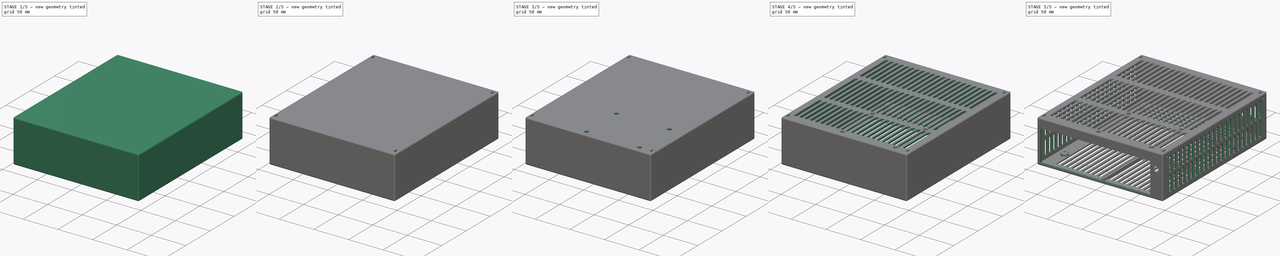
[diagram: build sequence overview — one tinted view per stage of 5, left to right]
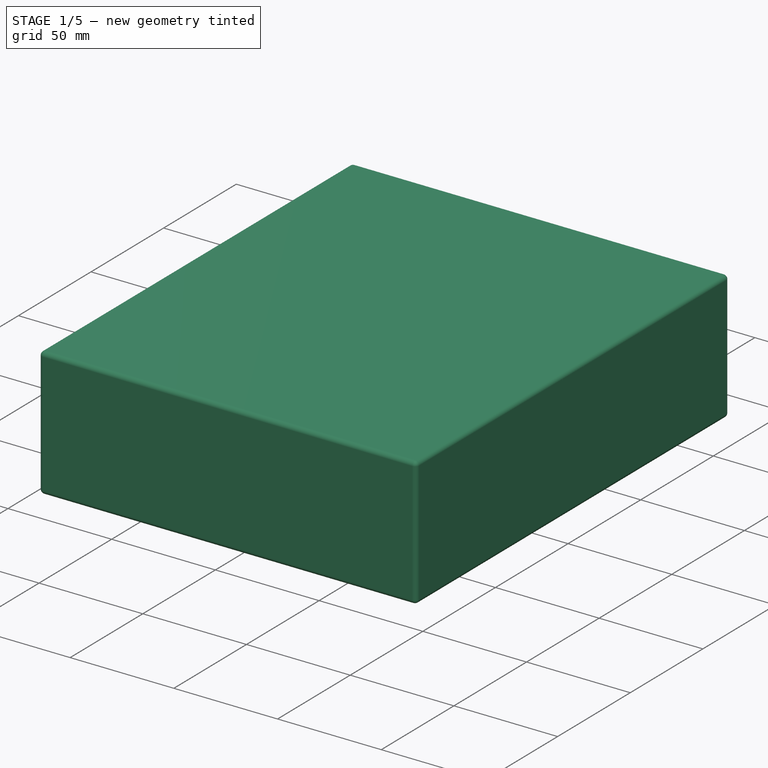
[diagram: stage 1 of 5 — iso view after this stage's code; geometry added in this stage tinted green]
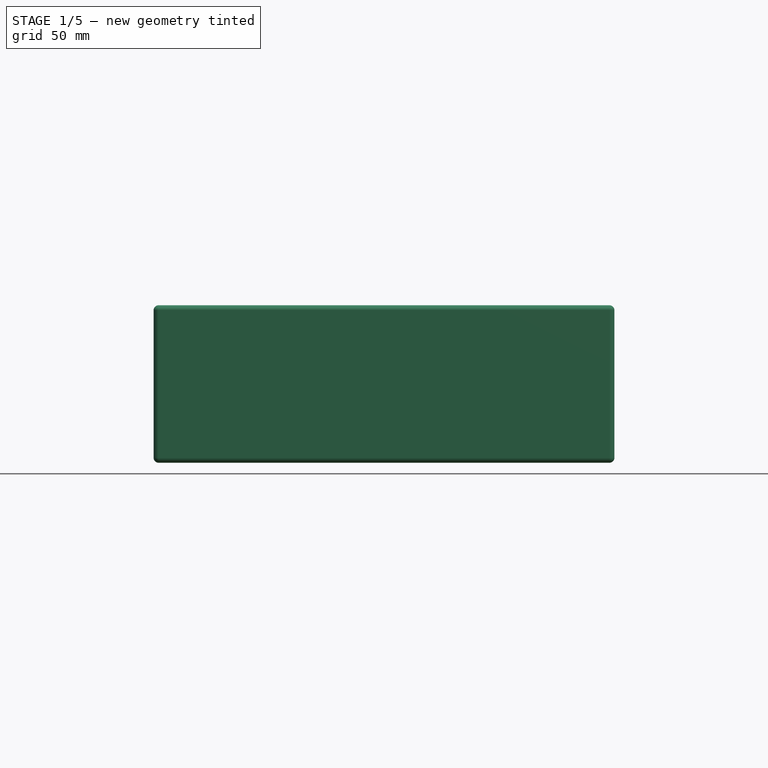
[diagram: stage 1 of 5 — front view after this stage's code; geometry added in this stage tinted green]
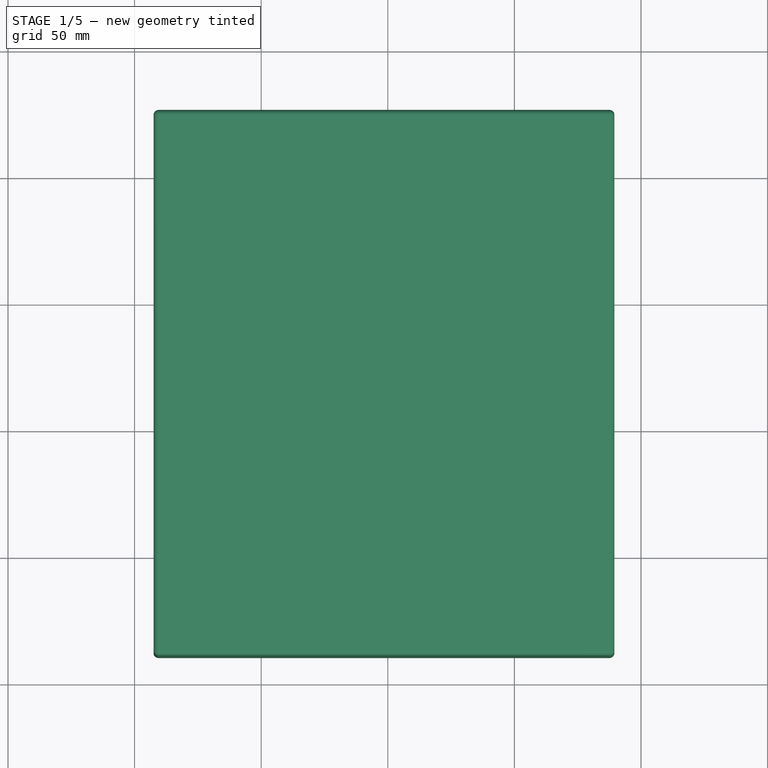
[diagram: stage 1 of 5 — top view after this stage's code; geometry added in this stage tinted green]
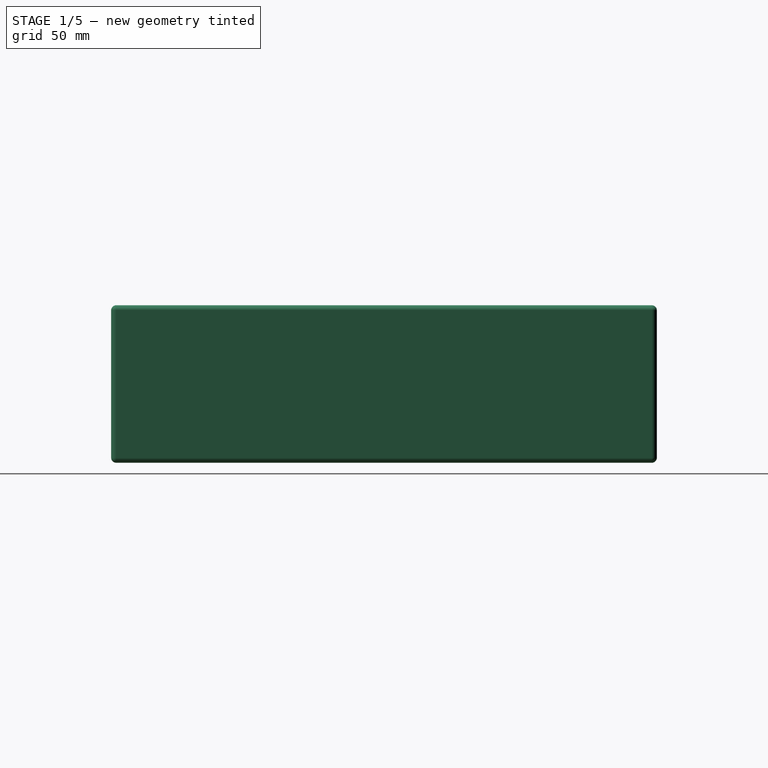
[diagram: stage 1 of 5 — right view after this stage's code; geometry added in this stage tinted green]
FCSTD DOCUMENT  (FreeCAD 1.0R39109 (Git))
Label: MiniItx_v1b
License: All rights reserved
LicenseURL: http://en.wikipedia.org/wiki/All_rights_reserved
objects: Sketcher::SketchObject×29, PartDesign::Pocket×16, PartDesign::Pad×9, PartDesign::Fillet×4, PartDesign::LinearPattern×4, PartDesign::ShapeBinder×3, PartDesign::Body×3, Spreadsheet::Sheet×2, PartDesign::Plane×1, PartDesign::AdditiveCone×1, PartDesign::Chamfer×1
note: 166 computed .brp shape members not serialized (recipe doc carries the construction recipe); baked Part::Feature solids carry a one-line shape summary decoded from their .brp

FEATURE [Sketcher::SketchObject] Sketch  label="Template_XY"
  ArcFitTolerance = 0
  AttachmentSupport = -> [XY_Plane001]
  FullyConstrained = true
  MakeInternals = false
  MapMode = 5
  expr: .Constraints.ScrewRadius = <<Screws>>.M3Radius
  expr: .Constraints.WallThickness = <<Spreadsheet>>.WallThickness
  sketch-geometry (42):
    g0: LineSegment StartX=-85 StartY=85 StartZ=0 EndX=85 EndY=85 EndZ=0
    g1: LineSegment StartX=85 StartY=85 StartZ=0 EndX=85 EndY=-85 EndZ=0
    g2: LineSegment StartX=85 StartY=-85 StartZ=0 EndX=-85 EndY=-85 EndZ=0
    g3: LineSegment StartX=-85 StartY=-85 StartZ=0 EndX=-85 EndY=85 EndZ=0
    g4: LineSegment [constr] StartX=-85 StartY=0 StartZ=0 EndX=85 EndY=0 EndZ=0
    g5: LineSegment [constr] StartX=0 StartY=85 StartZ=0 EndX=0 EndY=-85 EndZ=0
    g6: LineSegment StartX=-78.65 StartY=80.1 StartZ=0 EndX=-78.65 EndY=-51.98 EndZ=0
    g7: Circle CenterX=-78.65 CenterY=80.1 CenterZ=0 NormalX=0 NormalY=0 NormalZ=1 AngleXU=0 Radius=1.75
    g8: Circle CenterX=-78.65 CenterY=-51.98 CenterZ=0 NormalX=0 NormalY=0 NormalZ=1 AngleXU=0 Radius=1.75
    g9: LineSegment StartX=78.83 StartY=80.1 StartZ=0 EndX=78.83 EndY=-74.84 EndZ=0
    g10: Circle CenterX=78.83 CenterY=-74.84 CenterZ=0 NormalX=0 NormalY=0 NormalZ=1 AngleXU=0 Radius=1.75
    g11: LineSegment StartX=-78.65 StartY=80.1 StartZ=0 EndX=78.83 EndY=80.1 EndZ=0
    g12: Circle CenterX=78.83 CenterY=80.1 CenterZ=0 NormalX=0 NormalY=0 NormalZ=1 AngleXU=0 Radius=1.75
    g13: LineSegment StartX=-92.5 StartY=126 StartZ=0 EndX=89.5 EndY=126 EndZ=0
    g14: LineSegment StartX=89.5 StartY=126 StartZ=0 EndX=89.5 EndY=-89.5 EndZ=0
    g15: LineSegment StartX=89.5 StartY=-89.5 StartZ=0 EndX=-92.5 EndY=-89.5 EndZ=0
    g16: LineSegment StartX=-92.5 StartY=-89.5 StartZ=0 EndX=-92.5 EndY=126 EndZ=0
    g17: LineSegment StartX=-85 StartY=-85 StartZ=0 EndX=-87.5 EndY=-85 EndZ=0
    g18: LineSegment StartX=-85 StartY=-87.5 StartZ=0 EndX=-85 EndY=-89.5 EndZ=0
    g19: LineSegment StartX=-85 StartY=122.5 StartZ=0 EndX=69 EndY=122.5 EndZ=0
    g20: LineSegment StartX=69 StartY=122.5 StartZ=0 EndX=69 EndY=87.5 EndZ=0
    g21: LineSegment StartX=69 StartY=87.5 StartZ=0 EndX=-85 EndY=87.5 EndZ=0
    g22: LineSegment StartX=-85 StartY=87.5 StartZ=0 EndX=-85 EndY=122.5 EndZ=0
    g23: LineSegment [constr] StartX=-85 StartY=105 StartZ=0 EndX=69 EndY=105 EndZ=0
    g24: LineSegment [constr] StartX=-8 StartY=122.5 StartZ=0 EndX=-8 EndY=87.5 EndZ=0
    g25: LineSegment [constr] StartX=-85 StartY=87.5 StartZ=0 EndX=-85 EndY=85 EndZ=0
    g26: LineSegment StartX=-85 StartY=122.5 StartZ=0 EndX=-85 EndY=124 EndZ=0
    g27: Circle CenterX=-79.5 CenterY=105 CenterZ=0 NormalX=0 NormalY=0 NormalZ=1 AngleXU=0 Radius=1.75
    g28: Circle CenterX=63.5 CenterY=105 CenterZ=0 NormalX=0 NormalY=0 NormalZ=1 AngleXU=0 Radius=1.75
    g29: GeomPoint [constr] X=0 Y=0 Z=0
    g30: LineSegment StartX=-85 StartY=-85 StartZ=0 EndX=-85 EndY=-87.5 EndZ=0
    g31: LineSegment StartX=-87.5 StartY=-85 StartZ=0 EndX=-87.5 EndY=-89.5 EndZ=0
    g32: LineSegment StartX=-85 StartY=124 StartZ=0 EndX=-85 EndY=126 EndZ=0
    g33: LineSegment StartX=-85 StartY=85 StartZ=0 EndX=-87.5 EndY=85 EndZ=0
    g34: LineSegment StartX=-87.5 StartY=85 StartZ=0 EndX=-90.5 EndY=85 EndZ=0
    g35: LineSegment StartX=-90.5 StartY=85 StartZ=0 EndX=-92.5 EndY=85 EndZ=0
    g36: LineSegment StartX=85 StartY=85 StartZ=0 EndX=87.5 EndY=85 EndZ=0
    g37: LineSegment StartX=87.5 StartY=85 StartZ=0 EndX=89.5 EndY=85 EndZ=0
    g38: LineSegment StartX=-90.5 StartY=124 StartZ=0 EndX=87.5 EndY=124 EndZ=0
    g39: LineSegment StartX=87.5 StartY=124 StartZ=0 EndX=87.5 EndY=-87.5 EndZ=0
    g40: LineSegment StartX=87.5 StartY=-87.5 StartZ=0 EndX=-90.5 EndY=-87.5 EndZ=0
    g41: LineSegment StartX=-90.5 StartY=-87.5 StartZ=0 EndX=-90.5 EndY=124 EndZ=0
  constraints (125):
    c: Coincident(g0,g1)
    c: Coincident(g1,g2)
    c: Coincident(g2,g3)
    c: Coincident(g3,g0)
    c: Horizontal(g0)
    c: Horizontal(g2)
    c: Vertical(g1)
    c: Vertical(g3)
    c: DistanceX(g0,g0) = 170  'BoardWidth'
    c: Equal(g0,g1)
    c: PointOnObject(g4,g3)
    c: PointOnObject(g4,g1)
    c: PointOnObject(g5,g0)
    c: PointOnObject(g5,g2)
    c: Symmetric(g0,g0,g5)
    c: Symmetric(g0,g2,g4)
    c: Vertical(g6)
    c: Coincident(g7,g6)
    c: Coincident(g8,g6)
    c: DistanceY(g2,g8) = 33.02  'FrontLeftScrewFromEdge'
    c: DistanceY(g8,g7) = 132.08  'FrontBackLeftScrewDistance'
    c: Vertical(g9)
    c: DistanceX(g8,g9) = 157.48  'LeftRightScrewDistance'
    c: DistanceY(g1,g9) = 10.16  'FrontRightScrewFromEdge'
    c: Equal(g7,g8)
    c: Radius(g7) = 1.75  'ScrewRadius'
    c: Coincident(g10,g9)
    c: Equal(g10,g8)
    c: Coincident(g11,g7)
    c: Coincident(g11,g9)
    c: Horizontal(g11)
    c: Coincident(g12,g9)
    c: Equal(g12,g10)
    c: DistanceX(g0,g7) = 6.35  'LeftScrewDistanceFromEdge'
    c: Coincident(g13,g14)
    c: Coincident(g14,g15)
    c: Coincident(g15,g16)
    c: Coincident(g16,g13)
    c: Horizontal(g13)
    c: Horizontal(g15)
    c: Vertical(g14)
    c: Vertical(g16)
    c: Coincident(g17,g2)
    c: Horizontal(g17)
    c: Vertical(g18)
    c: Coincident(g19,g20)
    c: Coincident(g20,g21)
    c: Coincident(g21,g22)
    c: Coincident(g22,g19)
    c: Horizontal(g19)
    c: Horizontal(g21)
    c: Vertical(g20)
    c: Vertical(g22)
    c: PointOnObject(g23,g20)
    c: PointOnObject(g24,g19)
    c: PointOnObject(g24,g21)
    c: Symmetric(g19,g19,g24)
    c: DistanceX(g19,g19) = 154  'PSUWidth'
    c: DistanceY(g22,g22) = 35  'PSULength'
    c: Coincident(g25,g21)
    c: Vertical(g25)
    c: Coincident(g25,g0)
    c: Coincident(g26,g19)
    c: Vertical(g26)
    c: PointOnObject(g27,g23)
    c: Equal(g7,g27)
    c: Equal(g27,g28)
    c: Symmetric(g27,g28,g24)
    c: DistanceX(g13,g13) = 182  'TotalWidth'
    c: DistanceY(g16,g16) = 215.5  'TotalLength'
    c: PointOnObject(g29,g5)
    c: PointOnObject(g29,g4)
    c: Coincident(g29,g-1)  '__ANCHOR__'
    c: Vertical(g30)
    c: DistanceY(g30,g30) = 2.5  'BackPlateTolerance'
    c: Horizontal(g23)
    c: DistanceY(g14,g4) = 89.5  'FrontOffset'
    c: PointOnObject(g31,g15)
    c: Vertical(g31)
    c: PointOnObject(g18,g15)
    c: Coincident(g30,g18)
    c: Coincident(g30,g2)
    c: DistanceX(g31,g18) = 2.5
    c: DistanceX(g31,g5) = 87.5  'BackPlateCutoutDistance'
    c: DistanceY(g26,g26) = 1.5  'WallTolerance'
    c: Coincident(g32,g26)
    c: Vertical(g32)
    c: DistanceY(g32,g32) = 2  'WallThickness'
    c: PointOnObject(g32,g13)
    c: Coincident(g17,g31)
    c: Equal(g18,g32)
    c: Coincident(g3,g33)
    c: Horizontal(g33)
    c: Coincident(g33,g34)
    c: Horizontal(g34)
    c: Coincident(g34,g35)
    c: PointOnObject(g35,g16)
    c: Horizontal(g35)
    c: Equal(g35,g32)
    c: DistanceX(g34,g34) = 3
    c: Coincident(g0,g36)
    c: Horizontal(g36)
    c: Coincident(g36,g37)
    c: PointOnObject(g37,g14)
    c: Horizontal(g37)
    c: Equal(g32,g37)
    c: Coincident(g38,g39)
    c: Coincident(g39,g40)
    c: Coincident(g40,g41)
    c: Coincident(g41,g38)
    c: Horizontal(g38)
    c: Horizontal(g40)
    c: Vertical(g39)
    c: Vertical(g41)
    c: PointOnObject(g34,g41)
    c: PointOnObject(g18,g40)
    c: PointOnObject(g36,g39)
    c: PointOnObject(g26,g38)
    c: DistanceX(g15,g29) = 92.5  'LeftOuterEdgeDistance'
    c: DistanceX(g1,g39) = 2.5
    c: Equal(g33,g36)
    c: Equal(g25,g36)
    c: Symmetric(g21,g19,g23)
    c: DistanceX(g27,g28) = 143
    c: DistanceX(g23,g27) = 5.5
FEATURE [Spreadsheet::Sheet] Spreadsheet001  label="Screws"
  cells = B2='M3Radius; C2(M3Radius)==1.75 mm; B3='M3HeadRadius; C3(M3HeadRadius)==3 mm; B4='M3HeadHeight; C4(M3HeadHeight)==3.4 mm; B5='M3NutRadius; C5(M3NutRadius)==3.4 mm; B6='M3NutHeight; C6(M3NutHeight)==2.6 mm; B7='M3NutDuctWidth; C7(M3NutDuctWidth)==6 mm; B8='M4Radius; C8(M4Radius)==2.2 mm; B9='M4HeadRadius; C9(M4HeadRadius)==3.7 mm; B10='M4HeadHeight; C10(M4HeadHeight)==4 mm; B11='M4NutRadius; C11(M4NutRadius)==4.2 mm; B12='M4NutHeight; C12(M4NutHeight)==3.3 mm; B13='M5Radius; C13(M5Radius)==2.66 mm; B14='M5HeadRadius; C14(M5HeadRadius)==4.5 mm; B15='M5HeadHeight; C15(M5HeadHeight)==5 mm; B16='M5NutRadius; C16(M5NutRadius)==4.75 mm; B17='M5NutHeight; C17(M5NutHeight)==4 mm
FEATURE [Sketcher::SketchObject] Sketch009  label="Base"
  ArcFitTolerance = 0
  AttachmentSupport = -> [XY_Plane001]
  ExternalGeometry = -> [Sketch]
  FullyConstrained = true
  MakeInternals = false
  MapMode = 5
  sketch-geometry (4):
    g0: LineSegment StartX=-92.5 StartY=126 StartZ=0 EndX=89.5 EndY=126 EndZ=0
    g1: LineSegment StartX=89.5 StartY=126 StartZ=0 EndX=89.5 EndY=-89.5 EndZ=0
    g2: LineSegment StartX=89.5 StartY=-89.5 StartZ=0 EndX=-92.5 EndY=-89.5 EndZ=0
    g3: LineSegment StartX=-92.5 StartY=-89.5 StartZ=0 EndX=-92.5 EndY=126 EndZ=0
  constraints (8):
    c: Coincident(g0,g1)
    c: Coincident(g1,g2)
    c: Coincident(g2,g3)
    c: Coincident(g3,g0)
    c: Coincident(g0,g-3)
    c: Coincident(g1,g-4)
    c: Coincident(g0,g-3)
    c: Coincident(g2,g-4)
FEATURE [PartDesign::Pad] Pad  label="Base_"
  AllowMultiFace = false
  Direction = (0,0,1)
  Length = 2
  Length2 = 100
  Profile = -> Sketch009
  Suppressed = false
  Type = 0
  expr: Length = <<Template_YZ>>.Constraints.BaseThickness
FEATURE [Sketcher::SketchObject] Sketch010  label="PcbHolders"
  ArcFitTolerance = 0
  AttachmentOffset = pos=(0,0,2) rot=(0,0,1;0rad)
  AttachmentSupport = -> [XY_Plane001]
  ExternalGeometry = -> [Sketch]
  FullyConstrained = true
  MakeInternals = false
  MapMode = 5
  Placement = pos=(0,0,2) rot=(0,0,1;0rad)
  expr: .AttachmentOffset.Base.z = <<Base>>.Placement.Base.z + <<Base_>>.Length
  expr: Constraints[5] = <<Screws>>.M3NutRadius + 1.6 mm
  sketch-geometry (6):
    g0: Circle CenterX=-79.5 CenterY=105 CenterZ=0 NormalX=0 NormalY=0 NormalZ=1 AngleXU=0 Radius=5
    g1: Circle CenterX=-78.65 CenterY=80.1 CenterZ=0 NormalX=0 NormalY=0 NormalZ=1 AngleXU=0 Radius=5
    g2: Circle CenterX=63.5 CenterY=105 CenterZ=0 NormalX=0 NormalY=0 NormalZ=1 AngleXU=0 Radius=5
    g3: Circle CenterX=78.83 CenterY=80.1 CenterZ=0 NormalX=0 NormalY=0 NormalZ=1 AngleXU=0 Radius=5
    g4: Circle CenterX=78.83 CenterY=-74.84 CenterZ=0 NormalX=0 NormalY=0 NormalZ=1 AngleXU=0 Radius=5
    g5: Circle CenterX=-78.65 CenterY=-51.98 CenterZ=0 NormalX=0 NormalY=0 NormalZ=1 AngleXU=0 Radius=5
  constraints (12):
    c: Equal(g0,g2)
    c: Equal(g2,g1)
    c: Equal(g1,g3)
    c: Equal(g3,g4)
    c: Equal(g4,g5)
    c: Radius(g0) = 5
    c: Coincident(g4,g-6)
    c: Coincident(g5,g-7)
    c: Coincident(g1,g-8)
    c: Coincident(g0,g-3)
    c: Coincident(g3,g-5)
    c: Coincident(g2,g-4)
FEATURE [Sketcher::SketchObject] Sketch011  label="NutHoles"
  ArcFitTolerance = 0
  AttachmentOffset = pos=(0,0,4.3) rot=(0,0,1;0rad)
  AttachmentSupport = -> [XY_Plane001]
  ExternalGeometry = -> [Sketch]
  FullyConstrained = true
  MakeInternals = false
  MapMode = 5
  Placement = pos=(0,0,4.3) rot=(0,0,1;0rad)
  expr: .AttachmentOffset.Base.z = <<PcbHolders>>.AttachmentOffset.Base.z + <<PcbHolders_>>.Length - 2 mm
  expr: Constraints[119] = <<Screws>>.M3NutRadius
  sketch-geometry (42):
    g0: LineSegment StartX=-76.5555 StartY=103.3 StartZ=0 EndX=-76.5555 EndY=106.7 EndZ=0
    g1: LineSegment StartX=-76.5555 StartY=106.7 StartZ=0 EndX=-79.5 EndY=108.4 EndZ=0
    g2: LineSegment StartX=-79.5 StartY=108.4 StartZ=0 EndX=-82.4445 EndY=106.7 EndZ=0
    g3: LineSegment StartX=-82.4445 StartY=106.7 StartZ=0 EndX=-82.4445 EndY=103.3 EndZ=0
    g4: LineSegment StartX=-82.4445 StartY=103.3 StartZ=0 EndX=-79.5 EndY=101.6 EndZ=0
    g5: LineSegment StartX=-79.5 StartY=101.6 StartZ=0 EndX=-76.5555 EndY=103.3 EndZ=0
    g6: Circle [constr] CenterX=-79.5 CenterY=105 CenterZ=0 NormalX=0 NormalY=0 NormalZ=1 AngleXU=0 Radius=3.4
    g7: LineSegment StartX=66.4445 StartY=103.3 StartZ=0 EndX=66.4445 EndY=106.7 EndZ=0
    g8: LineSegment StartX=66.4445 StartY=106.7 StartZ=0 EndX=63.5 EndY=108.4 EndZ=0
    g9: LineSegment StartX=63.5 StartY=108.4 StartZ=0 EndX=60.5555 EndY=106.7 EndZ=0
    g10: LineSegment StartX=60.5555 StartY=106.7 StartZ=0 EndX=60.5555 EndY=103.3 EndZ=0
    g11: LineSegment StartX=60.5555 StartY=103.3 StartZ=0 EndX=63.5 EndY=101.6 EndZ=0
    g12: LineSegment StartX=63.5 StartY=101.6 StartZ=0 EndX=66.4445 EndY=103.3 EndZ=0
    g13: Circle [constr] CenterX=63.5 CenterY=105 CenterZ=0 NormalX=0 NormalY=0 NormalZ=1 AngleXU=0 Radius=3.4
    g14: LineSegment StartX=81.7745 StartY=78.4 StartZ=0 EndX=81.7745 EndY=81.8 EndZ=0
    g15: LineSegment StartX=81.7745 StartY=81.8 StartZ=0 EndX=78.83 EndY=83.5 EndZ=0
    g16: LineSegment StartX=78.83 StartY=83.5 StartZ=0 EndX=75.8855 EndY=81.8 EndZ=0
    g17: LineSegment StartX=75.8855 StartY=81.8 StartZ=0 EndX=75.8855 EndY=78.4 EndZ=0
    g18: LineSegment StartX=75.8855 StartY=78.4 StartZ=0 EndX=78.83 EndY=76.7 EndZ=0
    g19: LineSegment StartX=78.83 StartY=76.7 StartZ=0 EndX=81.7745 EndY=78.4 EndZ=0
    g20: Circle [constr] CenterX=78.83 CenterY=80.1 CenterZ=0 NormalX=0 NormalY=0 NormalZ=1 AngleXU=0 Radius=3.4
    g21: LineSegment StartX=81.7745 StartY=-76.54 StartZ=0 EndX=81.7745 EndY=-73.14 EndZ=0
    g22: LineSegment StartX=81.7745 StartY=-73.14 StartZ=0 EndX=78.83 EndY=-71.44 EndZ=0
    g23: LineSegment StartX=78.83 StartY=-71.44 StartZ=0 EndX=75.8855 EndY=-73.14 EndZ=0
    g24: LineSegment StartX=75.8855 StartY=-73.14 StartZ=0 EndX=75.8855 EndY=-76.54 EndZ=0
    g25: LineSegment StartX=75.8855 StartY=-76.54 StartZ=0 EndX=78.83 EndY=-78.24 EndZ=0
    g26: LineSegment StartX=78.83 StartY=-78.24 StartZ=0 EndX=81.7745 EndY=-76.54 EndZ=0
    g27: Circle [constr] CenterX=78.83 CenterY=-74.84 CenterZ=0 NormalX=0 NormalY=0 NormalZ=1 AngleXU=0 Radius=3.4
    g28: LineSegment StartX=-75.7055 StartY=-53.68 StartZ=0 EndX=-75.7055 EndY=-50.28 EndZ=0
    g29: LineSegment StartX=-75.7055 StartY=-50.28 StartZ=0 EndX=-78.65 EndY=-48.58 EndZ=0
    g30: LineSegment StartX=-78.65 StartY=-48.58 StartZ=0 EndX=-81.5945 EndY=-50.28 EndZ=0
    g31: LineSegment StartX=-81.5945 StartY=-50.28 StartZ=0 EndX=-81.5945 EndY=-53.68 EndZ=0
    g32: LineSegment StartX=-81.5945 StartY=-53.68 StartZ=0 EndX=-78.65 EndY=-55.38 EndZ=0
    g33: LineSegment StartX=-78.65 StartY=-55.38 StartZ=0 EndX=-75.7055 EndY=-53.68 EndZ=0
    g34: Circle [constr] CenterX=-78.65 CenterY=-51.98 CenterZ=0 NormalX=0 NormalY=0 NormalZ=1 AngleXU=0 Radius=3.4
    g35: LineSegment StartX=-75.7055 StartY=78.4 StartZ=0 EndX=-75.7055 EndY=81.8 EndZ=0
    g36: LineSegment StartX=-75.7055 StartY=81.8 StartZ=0 EndX=-78.65 EndY=83.5 EndZ=0
    g37: LineSegment StartX=-78.65 StartY=83.5 StartZ=0 EndX=-81.5945 EndY=81.8 EndZ=0
    g38: LineSegment StartX=-81.5945 StartY=81.8 StartZ=0 EndX=-81.5945 EndY=78.4 EndZ=0
    g39: LineSegment StartX=-81.5945 StartY=78.4 StartZ=0 EndX=-78.65 EndY=76.7 EndZ=0
    g40: LineSegment StartX=-78.65 StartY=76.7 StartZ=0 EndX=-75.7055 EndY=78.4 EndZ=0
    g41: Circle [constr] CenterX=-78.65 CenterY=80.1 CenterZ=0 NormalX=0 NormalY=0 NormalZ=1 AngleXU=0 Radius=3.4
  constraints (96):
    c: Coincident(g0,g1)
    c: Coincident(g1,g2)
    c: Coincident(g2,g3)
    c: Coincident(g3,g4)
    c: Coincident(g4,g5)
    c: Coincident(g5,g0)
    c: Equal(g0, g1-g5) x5
    c: PointOnObject(g0,g6)
    c: PointOnObject(g1,g6)
    c: PointOnObject(g2,g6)
    c: PointOnObject(g3,g6)
    c: PointOnObject(g4,g6)
    c: PointOnObject(g5,g6)
    c: Coincident(g6,g-3)
    c: Coincident(g7,g8)
    c: Coincident(g8,g9)
    c: Coincident(g9,g10)
    c: Coincident(g10,g11)
    c: Coincident(g11,g12)
    c: Coincident(g12,g7)
    c: Equal(g7, g8-g12) x5
    c: PointOnObject(g7,g13)
    c: PointOnObject(g8,g13)
    c: PointOnObject(g9,g13)
    c: PointOnObject(g10,g13)
    c: PointOnObject(g11,g13)
    c: PointOnObject(g12,g13)
    c: Coincident(g13,g-4)
    c: Coincident(g14,g15)
    c: Coincident(g15,g16)
    c: Coincident(g16,g17)
    c: Coincident(g17,g18)
    c: Coincident(g18,g19)
    c: Coincident(g19,g14)
    c: Equal(g14, g15-g19) x5
    c: PointOnObject(g14,g20)
    c: PointOnObject(g15,g20)
    c: PointOnObject(g16,g20)
    c: PointOnObject(g17,g20)
    c: PointOnObject(g18,g20)
    c: PointOnObject(g19,g20)
    c: Coincident(g20,g-5)
    c: Coincident(g21,g22)
    c: Coincident(g22,g23)
    c: Coincident(g23,g24)
    c: Coincident(g24,g25)
    c: Coincident(g25,g26)
    c: Coincident(g26,g21)
    c: Equal(g21, g22-g26) x5
    c: PointOnObject(g21,g27)
    c: PointOnObject(g22,g27)
    c: PointOnObject(g23,g27)
    c: PointOnObject(g24,g27)
    c: PointOnObject(g25,g27)
    c: PointOnObject(g26,g27)
    c: Coincident(g27,g-6)
    c: Coincident(g28,g29)
    c: Coincident(g29,g30)
    c: Coincident(g30,g31)
    c: Coincident(g31,g32)
    c: Coincident(g32,g33)
    c: Coincident(g33,g28)
    c: Equal(g28, g29-g33) x5
    c: PointOnObject(g28,g34)
    c: PointOnObject(g29,g34)
    c: PointOnObject(g30,g34)
    c: PointOnObject(g31,g34)
    c: PointOnObject(g32,g34)
    c: PointOnObject(g33,g34)
    c: Coincident(g34,g-7)
    c: Coincident(g35,g36)
    c: Coincident(g36,g37)
    c: Coincident(g37,g38)
    c: Coincident(g38,g39)
    c: Coincident(g39,g40)
    c: Coincident(g40,g35)
    c: Equal(g35, g36-g40) x5
    c: PointOnObject(g35,g41)
    c: PointOnObject(g36,g41)
    c: PointOnObject(g37,g41)
    c: PointOnObject(g38,g41)
    c: PointOnObject(g39,g41)
    c: PointOnObject(g40,g41)
    c: Coincident(g41,g-8)
    c: Vertical(g0)
    c: Vertical(g35)
    c: Vertical(g7)
    c: Vertical(g14)
    c: Vertical(g21)
    c: Vertical(g28)
    c: Equal(g6,g41)
    c: Equal(g41,g13)
    c: Equal(g13,g20)
    c: Equal(g20,g27)
    c: Equal(g27,g34)
    c: Radius(g6) = 3.4
FEATURE [Sketcher::SketchObject] Sketch012  label="MoBoBreathe"
  ArcFitTolerance = 0
  AttachmentSupport = -> [XY_Plane001]
  ExternalGeometry = -> [Sketch]
  FullyConstrained = true
  MakeInternals = false
  MapMode = 5
  sketch-geometry (12):
    g0: LineSegment [constr] StartX=-78.65 StartY=78.35 StartZ=0 EndX=78.83 EndY=78.35 EndZ=0
    g1: LineSegment [constr] StartX=-78.65 StartY=76.15 StartZ=0 EndX=-70.65 EndY=76.15 EndZ=0
    g2: LineSegment [constr] StartX=-70.65 StartY=76.15 StartZ=0 EndX=70.83 EndY=76.15 EndZ=0
    g3: LineSegment [constr] StartX=70.83 StartY=76.15 StartZ=0 EndX=78.83 EndY=76.15 EndZ=0
    g4: ArcOfCircle CenterX=-70.65 CenterY=76.15 CenterZ=0 NormalX=0 NormalY=0 NormalZ=1 AngleXU=0 Radius=2.2 StartAngle=-1.8e-15 EndAngle=3.14159
    g5: ArcOfCircle CenterX=-70.65 CenterY=6 CenterZ=0 NormalX=0 NormalY=0 NormalZ=1 AngleXU=0 Radius=2.2 StartAngle=3.14159 EndAngle=6.28319
    g6: LineSegment StartX=-72.85 StartY=76.15 StartZ=0 EndX=-72.85 EndY=6 EndZ=0
    g7: LineSegment StartX=-68.45 StartY=76.15 StartZ=0 EndX=-68.45 EndY=6 EndZ=0
    g8: ArcOfCircle CenterX=-70.65 CenterY=-6 CenterZ=0 NormalX=0 NormalY=0 NormalZ=1 AngleXU=0 Radius=2.2 StartAngle=2e-16 EndAngle=3.14159
    g9: ArcOfCircle CenterX=-70.65 CenterY=-76.15 CenterZ=0 NormalX=0 NormalY=0 NormalZ=1 AngleXU=0 Radius=2.2 StartAngle=3.14159 EndAngle=6.28319
    g10: LineSegment StartX=-72.85 StartY=-6 StartZ=0 EndX=-72.85 EndY=-76.15 EndZ=0
    g11: LineSegment StartX=-68.45 StartY=-6 StartZ=0 EndX=-68.45 EndY=-76.15 EndZ=0
  constraints (35):
    c: PointOnObject(g0,g-5)
    c: PointOnObject(g0,g-6)
    c: Horizontal(g0)
    c: Tangent(g0,g-3)
    c: PointOnObject(g1,g-5)
    c: Horizontal(g1)
    c: Coincident(g1,g2)
    c: Horizontal(g2)
    c: Coincident(g2,g3)
    c: PointOnObject(g3,g-6)
    c: Horizontal(g3)
    c: Equal(g1,g3)
    c: DistanceX(g2,g2) = 141.48  'BreathingAreaWidth'
    c: Tangent(g6,g5) = -1.5708
    c: Tangent(g7,g5) = 1.5708
    c: Vertical(g6)
    c: Equal(g4,g5)
    c: Coincident(g4,g1)
    c: Radius(g4) = 2.2
    c: PointOnObject(g4,g1)
    c: PointOnObject(g4,g2)
    c: Tangent(g4,g0)
    c: Coincident(g6,g4)
    c: Coincident(g7,g4)
    c: Tangent(g8,g11) = 1.5708
    c: Tangent(g8,g10) = -1.5708
    c: Tangent(g10,g9) = -1.5708
    c: Tangent(g11,g9) = 1.5708
    c: Vertical(g10)
    c: Equal(g8,g9)
    c: Equal(g8,g5)
    c: Symmetric(g8,g5,g-1)
    c: Equal(g10,g6)
    c: DistanceY(g8,g5) = 12
    c: DistanceX(g1,g4) = 8
FEATURE [Sketcher::SketchObject] Sketch013  label="PSUBreathe"
  ArcFitTolerance = 0
  AttachmentSupport = -> [XY_Plane001]
  ExternalGeometry = -> [Sketch]
  FullyConstrained = true
  MakeInternals = false
  MapMode = 5
  sketch-geometry (16):
    g0: LineSegment [constr] StartX=-85 StartY=105 StartZ=0 EndX=69 EndY=105 EndZ=0
    g1: LineSegment [constr] StartX=-71.5 StartY=116.1 StartZ=0 EndX=-71.5 EndY=93.9 EndZ=0
    g2: ArcOfCircle CenterX=-71.5 CenterY=93.9 CenterZ=0 NormalX=0 NormalY=0 NormalZ=1 AngleXU=0 Radius=2.2 StartAngle=1.5708 EndAngle=4.71239
    g3: ArcOfCircle CenterX=-4 CenterY=93.9 CenterZ=0 NormalX=0 NormalY=0 NormalZ=1 AngleXU=0 Radius=2.2 StartAngle=4.71239 EndAngle=7.85398
    g4: LineSegment StartX=-71.5 StartY=91.7 StartZ=0 EndX=-4 EndY=91.7 EndZ=0
    g5: LineSegment StartX=-71.5 StartY=96.1 StartZ=0 EndX=-4 EndY=96.1 EndZ=0
    g6: ArcOfCircle CenterX=4 CenterY=93.9 CenterZ=0 NormalX=0 NormalY=0 NormalZ=1 AngleXU=0 Radius=2.2 StartAngle=1.5708 EndAngle=4.71239
    g7: ArcOfCircle CenterX=55.5 CenterY=93.9 CenterZ=0 NormalX=0 NormalY=0 NormalZ=1 AngleXU=0 Radius=2.2 StartAngle=4.71239 EndAngle=7.85398
    g8: LineSegment StartX=4 StartY=91.7 StartZ=0 EndX=55.5 EndY=91.7 EndZ=0
    g9: LineSegment StartX=4 StartY=96.1 StartZ=0 EndX=55.5 EndY=96.1 EndZ=0
    g10: LineSegment [constr] StartX=-8 StartY=122.5 StartZ=0 EndX=-8 EndY=87.5 EndZ=0
    g11: LineSegment [constr] StartX=-71.5 StartY=93.9 StartZ=0 EndX=-79.5 EndY=93.9 EndZ=0
    g12: LineSegment [constr] StartX=55.5 StartY=93.9 StartZ=0 EndX=63.5 EndY=93.9 EndZ=0
    g13: LineSegment [constr] StartX=-79.5 StartY=105 StartZ=0 EndX=-79.5 EndY=93.9 EndZ=0
    g14: LineSegment [constr] StartX=63.5 StartY=105 StartZ=0 EndX=63.5 EndY=93.9 EndZ=0
    g15: LineSegment [constr] StartX=-4 StartY=93.9 StartZ=0 EndX=4 EndY=93.9 EndZ=0
  constraints (39):
    c: Symmetric(g1,g1,g0)
    c: DistanceY(g1,g1) = 22.2  'BreathingAreaLength'
    c: Tangent(g2,g5) = 1.5708
    c: Tangent(g2,g4) = -1.5708
    c: Tangent(g4,g3) = -1.5708
    c: Tangent(g5,g3) = 1.5708
    c: Horizontal(g4)
    c: Equal(g2,g3)
    c: Coincident(g2,g1)
    c: Tangent(g6,g9) = 1.5708
    c: Tangent(g6,g8) = -1.5708
    c: Tangent(g8,g7) = -1.5708
    c: Tangent(g9,g7) = 1.5708
    c: Horizontal(g8)
    c: Equal(g6,g7)
    c: Equal(g6,g3)
    c: Radius(g2) = 2.2
    c: DistanceX(g3,g6) = 8
    c: PointOnObject(g10,g-5)
    c: PointOnObject(g10,g-6)
    c: Symmetric(g-5,g-5,g10)
    c: PointOnObject(g0,g-7)
    c: PointOnObject(g0,g-8)
    c: Symmetric(g-7,g-7,g0)
    c: DistanceX(g7,g-4) = 8
    c: Coincident(g11,g2)
    c: Horizontal(g11)
    c: Coincident(g12,g7)
    c: Horizontal(g12)
    c: Coincident(g13,g-3)
    c: Coincident(g13,g11)
    c: Vertical(g13)
    c: Coincident(g14,g-4)
    c: Coincident(g14,g12)
    c: Vertical(g14)
    c: Equal(g12,g11)
    c: Coincident(g15,g3)
    c: Coincident(g15,g6)
    c: Symmetric(g6,g3,g-2)
FEATURE [Sketcher::SketchObject] Sketch014  label="Walls"
  ArcFitTolerance = 0
  AttachmentOffset = pos=(0,0,2) rot=(0,0,1;0rad)
  AttachmentSupport = -> [XY_Plane001]
  ExternalGeometry = -> [Sketch]
  FullyConstrained = true
  MakeInternals = false
  MapMode = 5
  Placement = pos=(0,0,2) rot=(0,0,1;0rad)
  expr: .AttachmentOffset.Base.z = <<Base>>.Placement.Base.z + <<Base_>>.Length
  sketch-geometry (8):
    g0: LineSegment StartX=-92.5 StartY=126 StartZ=0 EndX=89.5 EndY=126 EndZ=0
    g1: LineSegment StartX=89.5 StartY=126 StartZ=0 EndX=89.5 EndY=-89.5 EndZ=0
    g2: LineSegment StartX=89.5 StartY=-89.5 StartZ=0 EndX=-92.5 EndY=-89.5 EndZ=0
    g3: LineSegment StartX=-92.5 StartY=-89.5 StartZ=0 EndX=-92.5 EndY=126 EndZ=0
    g4: LineSegment StartX=-90.5 StartY=124 StartZ=0 EndX=87.5 EndY=124 EndZ=0
    g5: LineSegment StartX=87.5 StartY=124 StartZ=0 EndX=87.5 EndY=-87.5 EndZ=0
    g6: LineSegment StartX=87.5 StartY=-87.5 StartZ=0 EndX=-90.5 EndY=-87.5 EndZ=0
    g7: LineSegment StartX=-90.5 StartY=-87.5 StartZ=0 EndX=-90.5 EndY=124 EndZ=0
  constraints (20):
    c: Coincident(g0,g1)
    c: Coincident(g1,g2)
    c: Coincident(g2,g3)
    c: Coincident(g3,g0)
    c: Horizontal(g0)
    c: Horizontal(g2)
    c: Vertical(g1)
    c: Vertical(g3)
    c: Coincident(g0,g-3)
    c: Coincident(g1,g-5)
    c: Coincident(g4,g5)
    c: Coincident(g5,g6)
    c: Coincident(g6,g7)
    c: Coincident(g7,g4)
    c: Horizontal(g4)
    c: Horizontal(g6)
    c: Vertical(g5)
    c: Vertical(g7)
    c: Coincident(g4,g-4)
    c: Coincident(g5,g-6)
FEATURE [PartDesign::Pad] Pad002  label="Walls_"
  AllowMultiFace = false
  BaseFeature = -> Pad
  Direction = (0,0,1)
  Length = 58
  Length2 = 100
  Profile = -> Sketch014
  Refine = true
  Suppressed = false
  Type = 0
  expr: Length = <<Template_YZ>>.Constraints.WallHeight
FEATURE [Sketcher::SketchObject] Sketch015  label="Template_YZ"
  ArcFitTolerance = 0
  AttachmentSupport = -> [YZ_Plane001]
  FullyConstrained = true
  MakeInternals = false
  MapMode = 5
  Placement = pos=(0,0,0) rot=(0.57735,0.57735,0.57735;2.0944rad)
  expr: .Constraints.WallHeight = <<Spreadsheet>>.InnerHeight
  expr: Constraints[20] = <<Template_XY>>.Constraints.TotalLength
  expr: Constraints[21] = <<Template_XY>>.Constraints.FrontOffset
  expr: Constraints[37] = <<Template_XY>>.Constraints.WallThickness
  expr: Constraints[60] = <<Screws>>.M3NutRadius
  sketch-geometry (40):
    g0: LineSegment StartX=-89.5 StartY=60 StartZ=0 EndX=126 EndY=60 EndZ=0
    g1: LineSegment StartX=126 StartY=60 StartZ=0 EndX=126 EndY=2 EndZ=0
    g2: LineSegment StartX=126 StartY=2 StartZ=0 EndX=-89.5 EndY=2 EndZ=0
    g3: LineSegment StartX=-89.5 StartY=2 StartZ=0 EndX=-89.5 EndY=60 EndZ=0
    g4: LineSegment StartX=-89.5 StartY=2 StartZ=0 EndX=126 EndY=2 EndZ=0
    g5: LineSegment StartX=126 StartY=2 StartZ=0 EndX=126 EndY=0 EndZ=0
    g6: LineSegment StartX=126 StartY=0 StartZ=0 EndX=-89.5 EndY=0 EndZ=0
    g7: LineSegment StartX=-89.5 StartY=0 StartZ=0 EndX=-89.5 EndY=2 EndZ=0
    g8: LineSegment StartX=-87.5 StartY=60 StartZ=0 EndX=-87.5 EndY=2 EndZ=0
    g9: LineSegment StartX=124 StartY=60 StartZ=0 EndX=124 EndY=2 EndZ=0
    g10: LineSegment StartX=-87.5 StartY=31 StartZ=0 EndX=124 EndY=31 EndZ=0
    g11: LineSegment [constr] StartX=124 StartY=31 StartZ=0 EndX=126 EndY=31 EndZ=0
    g12: LineSegment [constr] StartX=-87.5 StartY=31 StartZ=0 EndX=-89.5 EndY=31 EndZ=0
    g13: LineSegment [constr] StartX=-87.5 StartY=56.2 StartZ=0 EndX=124 EndY=56.2 EndZ=0
    g14: LineSegment StartX=121.6 StartY=54.5 StartZ=0 EndX=121.6 EndY=57.9 EndZ=0
    g15: LineSegment StartX=121.6 StartY=57.9 StartZ=0 EndX=118.656 EndY=59.6 EndZ=0
    g16: LineSegment StartX=118.656 StartY=59.6 StartZ=0 EndX=115.711 EndY=57.9 EndZ=0
    g17: LineSegment StartX=115.711 StartY=57.9 StartZ=0 EndX=115.711 EndY=54.5 EndZ=0
    g18: LineSegment StartX=115.711 StartY=54.5 StartZ=0 EndX=118.656 EndY=52.8 EndZ=0
    g19: LineSegment StartX=118.656 StartY=52.8 StartZ=0 EndX=121.6 EndY=54.5 EndZ=0
    g20: Circle CenterX=118.656 CenterY=56.2 CenterZ=0 NormalX=0 NormalY=0 NormalZ=1 AngleXU=0 Radius=3.4
    g21: LineSegment StartX=113.711 StartY=60 StartZ=0 EndX=113.711 EndY=52.4 EndZ=0
    g22: LineSegment StartX=113.711 StartY=52.4 StartZ=0 EndX=123.6 EndY=52.4 EndZ=0
    g23: LineSegment StartX=123.6 StartY=52.4 StartZ=0 EndX=123.6 EndY=60 EndZ=0
    g24: LineSegment [constr] StartX=121.6 StartY=57.9 StartZ=0 EndX=123.6 EndY=57.9 EndZ=0
    g25: LineSegment [constr] StartX=115.711 StartY=57.9 StartZ=0 EndX=113.711 EndY=57.9 EndZ=0
    g26: LineSegment [constr] StartX=118.656 StartY=59.6 StartZ=0 EndX=118.656 EndY=60 EndZ=0
    g27: LineSegment StartX=-85.5 StartY=60 StartZ=0 EndX=-85.5 EndY=52.4 EndZ=0
    g28: LineSegment StartX=-85.5 StartY=52.4 StartZ=0 EndX=-75.611 EndY=52.4 EndZ=0
    g29: LineSegment StartX=-75.611 StartY=52.4 StartZ=0 EndX=-75.611 EndY=60 EndZ=0
    g30: LineSegment StartX=-77.611 StartY=54.5 StartZ=0 EndX=-77.611 EndY=57.9 EndZ=0
    g31: LineSegment StartX=-77.611 StartY=57.9 StartZ=0 EndX=-80.5555 EndY=59.6 EndZ=0
    g32: LineSegment StartX=-80.5555 StartY=59.6 StartZ=0 EndX=-83.5 EndY=57.9 EndZ=0
    g33: LineSegment StartX=-83.5 StartY=57.9 StartZ=0 EndX=-83.5 EndY=54.5 EndZ=0
    g34: LineSegment StartX=-83.5 StartY=54.5 StartZ=0 EndX=-80.5555 EndY=52.8 EndZ=0
    g35: LineSegment StartX=-80.5555 StartY=52.8 StartZ=0 EndX=-77.611 EndY=54.5 EndZ=0
    g36: Circle CenterX=-80.5555 CenterY=56.2 CenterZ=0 NormalX=0 NormalY=0 NormalZ=1 AngleXU=0 Radius=3.4
    g37: LineSegment [constr] StartX=-83.5 StartY=57.9 StartZ=0 EndX=-85.5 EndY=57.9 EndZ=0
    g38: LineSegment [constr] StartX=-77.611 StartY=57.9 StartZ=0 EndX=-75.611 EndY=57.9 EndZ=0
    g39: LineSegment [constr] StartX=118.656 StartY=52.8 StartZ=0 EndX=118.656 EndY=52.4 EndZ=0
  constraints (115):
    c: Coincident(g0,g1)
    c: Coincident(g1,g2)
    c: Coincident(g2,g3)
    c: Coincident(g3,g0)
    c: Horizontal(g0)
    c: Horizontal(g2)
    c: Vertical(g1)
    c: Vertical(g3)
    c: DistanceY(g-1,g2) = 2  'BaseThickness'
    c: DistanceY(g3,g3) = 58  'WallHeight'
    c: Coincident(g4,g5)
    c: Coincident(g5,g6)
    c: Coincident(g6,g7)
    c: Coincident(g7,g4)
    c: Horizontal(g6)
    c: Vertical(g5)
    c: Vertical(g7)
    c: Coincident(g4,g2)
    c: PointOnObject(g5,g-1)
    c: Coincident(g4,g1)
    c: DistanceX(g0,g0) = 215.5
    c: DistanceX(g6,g-1) = 89.5
    c: PointOnObject(g8,g0)
    c: PointOnObject(g8,g2)
    c: Vertical(g8)
    c: PointOnObject(g9,g0)
    c: PointOnObject(g9,g2)
    c: Vertical(g9)
    c: PointOnObject(g10,g8)
    c: PointOnObject(g10,g9)
    c: Symmetric(g9,g9,g10)
    c: Coincident(g11,g10)
    c: Horizontal(g11)
    c: Coincident(g12,g10)
    c: PointOnObject(g12,g3)
    c: Horizontal(g12)
    c: Equal(g11,g12)
    c: DistanceX(g0,g8) = 2
    c: PointOnObject(g13,g8)
    c: PointOnObject(g13,g9)
    c: Horizontal(g13)
    c: PointOnObject(g11,g1)
    c: Coincident(g14,g15)
    c: Coincident(g15,g16)
    c: Coincident(g16,g17)
    c: Coincident(g17,g18)
    c: Coincident(g18,g19)
    c: Coincident(g19,g14)
    c: Equal(g14, g15-g19) x5
    c: PointOnObject(g14,g20)
    c: PointOnObject(g15,g20)
    c: PointOnObject(g16,g20)
    c: PointOnObject(g17,g20)
    c: PointOnObject(g18,g20)
    c: PointOnObject(g19,g20)
    c: PointOnObject(g20,g13)
    c: Radius(g20) = 3.4
    c: Vertical(g14)
    c: PointOnObject(g21,g0)
    c: Vertical(g21)
    c: Coincident(g21,g22)
    c: Horizontal(g22)
    c: Coincident(g22,g23)
    c: PointOnObject(g23,g0)
    c: Vertical(g23)
    c: DistanceX(g23,g9) = 0.4
    c: Coincident(g24,g14)
    c: PointOnObject(g24,g23)
    c: Horizontal(g24)
    c: Coincident(g25,g16)
    c: PointOnObject(g25,g21)
    c: Horizontal(g25)
    c: Equal(g25,g24)
    c: DistanceX(g24,g24) = 2
    c: Coincident(g26,g15)
    c: PointOnObject(g26,g0)
    c: Vertical(g26)
    c: PointOnObject(g27,g0)
    c: Vertical(g27)
    c: Coincident(g27,g28)
    c: Horizontal(g28)
    c: Coincident(g28,g29)
    c: PointOnObject(g29,g0)
    c: Vertical(g29)
    c: Equal(g22,g28)
    c: Equal(g29,g21)
    c: DistanceX(g8,g27) = 2
    c: Coincident(g30,g31)
    c: Coincident(g31,g32)
    c: Coincident(g32,g33)
    c: Coincident(g33,g34)
    c: Coincident(g34,g35)
    c: Coincident(g35,g30)
    c: Equal(g30, g31-g35) x5
    c: PointOnObject(g30,g36)
    c: PointOnObject(g31,g36)
    c: PointOnObject(g32,g36)
    c: PointOnObject(g33,g36)
    c: PointOnObject(g34,g36)
    c: PointOnObject(g35,g36)
    c: PointOnObject(g36,g13)
    c: Vertical(g30)
    c: Equal(g36,g20)
    c: Coincident(g37,g32)
    c: PointOnObject(g37,g27)
    c: Horizontal(g37)
    c: Coincident(g38,g30)
    c: PointOnObject(g38,g29)
    c: Horizontal(g38)
    c: Equal(g38,g37)
    c: Coincident(g39,g18)
    c: PointOnObject(g39,g22)
    c: Vertical(g39)
    c: DistanceY(g39,g39) = 0.4
    c: Equal(g39,g26)
FEATURE [Sketcher::SketchObject] Sketch016  label="Template_XZ"
  ArcFitTolerance = 0
  AttachmentSupport = -> [XZ_Plane001]
  FullyConstrained = true
  MakeInternals = false
  MapMode = 5
  Placement = pos=(0,0,0) rot=(1,0,0;1.5708rad)
  expr: Constraints[18] = <<Template_XY>>.Constraints.TotalWidth
  expr: Constraints[19] = <<Template_YZ>>.Constraints.BaseThickness
  expr: Constraints[20] = <<Template_YZ>>.Constraints.WallHeight
  expr: Constraints[37] = <<Template_XY>>.Constraints.WallThickness
  expr: Constraints[38] = Sketch.Constraints.LeftOuterEdgeDistance
  expr: Constraints[47] = <<Template_XY>>.Constraints.BackPlateCutoutDistance
  sketch-geometry (18):
    g0: LineSegment StartX=-92.5 StartY=60 StartZ=0 EndX=89.5 EndY=60 EndZ=0
    g1: LineSegment StartX=89.5 StartY=60 StartZ=0 EndX=89.5 EndY=2 EndZ=0
    g2: LineSegment StartX=89.5 StartY=2 StartZ=0 EndX=-92.5 EndY=2 EndZ=0
    g3: LineSegment StartX=-92.5 StartY=2 StartZ=0 EndX=-92.5 EndY=60 EndZ=0
    g4: LineSegment StartX=89.5 StartY=2 StartZ=0 EndX=-92.5 EndY=2 EndZ=0
    g5: LineSegment StartX=-92.5 StartY=2 StartZ=0 EndX=-92.5 EndY=0 EndZ=0
    g6: LineSegment StartX=-92.5 StartY=0 StartZ=0 EndX=89.5 EndY=0 EndZ=0
    g7: LineSegment StartX=89.5 StartY=0 StartZ=0 EndX=89.5 EndY=2 EndZ=0
    g8: LineSegment StartX=-90.5 StartY=60 StartZ=0 EndX=-90.5 EndY=2 EndZ=0
    g9: LineSegment StartX=87.5 StartY=60 StartZ=0 EndX=87.5 EndY=2 EndZ=0
    g10: LineSegment [constr] StartX=89.5 StartY=31 StartZ=0 EndX=87.5 EndY=31 EndZ=0
    g11: LineSegment [constr] StartX=87.5 StartY=31 StartZ=0 EndX=-90.5 EndY=31 EndZ=0
    g12: LineSegment [constr] StartX=-90.5 StartY=31 StartZ=0 EndX=-92.5 EndY=31 EndZ=0
    g13: LineSegment StartX=-87.5 StartY=48.7 StartZ=0 EndX=71.5 EndY=48.7 EndZ=0
    g14: LineSegment StartX=71.5 StartY=48.7 StartZ=0 EndX=71.5 EndY=4 EndZ=0
    g15: LineSegment StartX=71.5 StartY=4 StartZ=0 EndX=-87.5 EndY=4 EndZ=0
    g16: LineSegment StartX=-87.5 StartY=4 StartZ=0 EndX=-87.5 EndY=48.7 EndZ=0
    g17: LineSegment StartX=-87.5 StartY=6.3 StartZ=0 EndX=71.5 EndY=6.3 EndZ=0
  constraints (58):
    c: Coincident(g0,g1)
    c: Coincident(g1,g2)
    c: Coincident(g2,g3)
    c: Coincident(g3,g0)
    c: Horizontal(g0)
    c: Horizontal(g2)
    c: Vertical(g1)
    c: Vertical(g3)
    c: Coincident(g4,g5)
    c: Coincident(g5,g6)
    c: Coincident(g6,g7)
    c: Coincident(g7,g4)
    c: Horizontal(g6)
    c: Vertical(g5)
    c: Vertical(g7)
    c: Coincident(g4,g1)
    c: PointOnObject(g5,g-1)
    c: Coincident(g4,g2)
    c: DistanceX(g0,g0) = 182
    c: DistanceY(g5,g5) = 2
    c: DistanceY(g3,g3) = 58
    c: PointOnObject(g8,g0)
    c: PointOnObject(g8,g2)
    c: Vertical(g8)
    c: PointOnObject(g9,g0)
    c: PointOnObject(g9,g2)
    c: Vertical(g9)
    c: PointOnObject(g10,g1)
    c: PointOnObject(g10,g9)
    c: Horizontal(g10)
    c: Coincident(g10,g11)
    c: PointOnObject(g11,g8)
    c: Horizontal(g11)
    c: Coincident(g11,g12)
    c: PointOnObject(g12,g3)
    c: Symmetric(g0,g2,g12)
    c: Equal(g12,g10)
    c: DistanceX(g0,g8) = 2
    c: DistanceX(g5,g-1) = 92.5
    c: Coincident(g13,g14)
    c: Coincident(g14,g15)
    c: Coincident(g15,g16)
    c: Coincident(g16,g13)
    c: Horizontal(g13)
    c: Horizontal(g15)
    c: Vertical(g14)
    c: Vertical(g16)
    c: DistanceX(g15,g-1) = 87.5
    c: DistanceX(g13,g13) = 159  'BackPlateCutoutWidth'
    c: DistanceY(g14,g14) = 44.7  'BackPlateCutoutHeight'
    c: DistanceY(g5,g15) = 4  'BackPlateCutoutVerticalOffset'
    c: DistanceY(g6,g13) = 48.7  'BackPlateTop'
    c: PointOnObject(g17,g16)
    c: PointOnObject(g17,g14)
    c: Horizontal(g17)
    c: DistanceY(g15,g17) = 2.3
    c: DistanceY(g2,g17) = 4.3  'PCBBumpHeight'
    c: DistanceY(g2,g15) = 2
FEATURE [Sketcher::SketchObject] Sketch008  label="BackPlate"
  ArcFitTolerance = 0
  AttachmentOffset = pos=(0,0,89.5) rot=(0,0,1;0rad)
  AttachmentSupport = -> [XZ_Plane001]
  ExternalGeometry = -> [Sketch016]
  FullyConstrained = true
  MakeInternals = false
  MapMode = 5
  Placement = pos=(0,-89.5,1.99e-14) rot=(1,0,0;1.5708rad)
  expr: .AttachmentOffset.Base.z = Sketch.Constraints.FrontOffset
  sketch-geometry (4):
    g0: LineSegment StartX=-87.5 StartY=60 StartZ=0 EndX=71.5 EndY=60 EndZ=0
    g1: LineSegment StartX=71.5 StartY=60 StartZ=0 EndX=71.5 EndY=4 EndZ=0
    g2: LineSegment StartX=71.5 StartY=4 StartZ=0 EndX=-87.5 EndY=4 EndZ=0
    g3: LineSegment StartX=-87.5 StartY=4 StartZ=0 EndX=-87.5 EndY=60 EndZ=0
  constraints (10):
    c: Coincident(g0,g1)
    c: Coincident(g1,g2)
    c: Coincident(g2,g3)
    c: Horizontal(g0)
    c: Vertical(g1)
    c: Vertical(g3)
    c: Coincident(g1,g-3)
    c: Coincident(g2,g-3)
    c: Coincident(g3,g0)
    c: PointOnObject(g0,g-4)
FEATURE [Sketcher::SketchObject] Sketch017  label="SideBreathe"
  ArcFitTolerance = 0
  AttachmentSupport = -> [YZ_Plane001]
  ExternalGeometry = -> [Sketch015]
  FullyConstrained = true
  MakeInternals = false
  MapMode = 5
  Placement = pos=(0,0,0) rot=(0.57735,0.57735,0.57735;2.0944rad)
  expr: Constraints[14] = .Constraints.Rb
  expr: Constraints[9] = <<PcbHolders_>>.Length + 0.1 mm
  sketch-geometry (16):
    g0: ArcOfCircle CenterX=-73.411 CenterY=8.6 CenterZ=0 NormalX=0 NormalY=0 NormalZ=1 AngleXU=0 Radius=2.2 StartAngle=3.14159 EndAngle=6.28319
    g1: LineSegment [constr] StartX=-87.5 StartY=56.2 StartZ=0 EndX=-73.411 EndY=56.2 EndZ=0
    g2: LineSegment [constr] StartX=-73.411 StartY=56.2 StartZ=0 EndX=111.511 EndY=56.2 EndZ=0
    g3: LineSegment [constr] StartX=111.511 StartY=56.2 StartZ=0 EndX=124 EndY=56.2 EndZ=0
    g4: LineSegment [constr] StartX=-87.5 StartY=6.4 StartZ=0 EndX=124 EndY=6.4 EndZ=0
    g5: LineSegment StartX=-71.211 StartY=52.3895 StartZ=0 EndX=-71.211 EndY=34.5 EndZ=0
    g6: LineSegment StartX=-71.211 StartY=26.4895 StartZ=0 EndX=-71.211 EndY=8.6 EndZ=0
    g7: LineSegment StartX=-75.611 StartY=26.4895 StartZ=0 EndX=-75.611 EndY=8.6 EndZ=0
    g8: LineSegment StartX=-75.611 StartY=52.3895 StartZ=0 EndX=-75.611 EndY=34.5 EndZ=0
    g9: ArcOfCircle CenterX=-73.411 CenterY=34.5 CenterZ=0 NormalX=0 NormalY=0 NormalZ=1 AngleXU=0 Radius=2.2 StartAngle=3.14159 EndAngle=6.28319
    g10: LineSegment [constr] StartX=-73.411 StartY=32.3 StartZ=0 EndX=-73.411 EndY=30.3 EndZ=0
    g11: LineSegment StartX=-75.611 StartY=52.3895 StartZ=0 EndX=-73.411 EndY=56.2 EndZ=0
    g12: LineSegment StartX=-73.411 StartY=56.2 StartZ=0 EndX=-71.211 EndY=52.3895 EndZ=0
    g13: LineSegment [constr] StartX=-75.611 StartY=52.3895 StartZ=0 EndX=-71.211 EndY=52.3895 EndZ=0
    g14: LineSegment StartX=-75.611 StartY=26.4895 StartZ=0 EndX=-73.411 EndY=30.3 EndZ=0
    g15: LineSegment StartX=-73.411 StartY=30.3 StartZ=0 EndX=-71.211 EndY=26.4895 EndZ=0
  constraints (48):
    c: Coincident(g6,g0) = 1.5708
    c: Horizontal(g1)
    c: Coincident(g1,g2)
    c: Horizontal(g2)
    c: Coincident(g2,g3)
    c: Horizontal(g3)
    c: Horizontal(g4)
    c: DistanceX(g2,g2) = 184.922  'BreatheLen'
    c: Tangent(g0,g4)
    c: DistanceY(g-6,g4) = 4.4
    c: PointOnObject(g-7,g1)
    c: PointOnObject(g8,g-8)
    c: PointOnObject(g1,g-3)
    c: PointOnObject(g3,g-4)
    c: DistanceX(g2,g-9) = 2.2
    c: PointOnObject(g4,g-4)
    c: PointOnObject(g4,g-3)
    c: Vertical(g7)
    c: Vertical(g8)
    c: Equal(g8,g7)
    c: Equal(g5,g6)
    c: Vertical(g5)
    c: Vertical(g6)
    c: Tangent(g0,g7) = -1.5708
    c: PointOnObject(g7,g8)
    c: Tangent(g8,g9) = -1.5708
    c: Tangent(g5,g9) = 1.5708
    c: PointOnObject(g10,g9)
    c: Vertical(g10)
    c: PointOnObject(g9,g10)
    c: DistanceY(g10,g10) = 2
    c: Radius(g9) = 2.2  'Rb'
    c: Coincident(g11,g8)
    c: Coincident(g11,g1)
    c: Coincident(g12,g1)
    c: Coincident(g12,g5)
    c: Equal(g12,g11)
    c: Coincident(g13,g8)
    c: Coincident(g13,g5)
    c: Horizontal(g13)
    c: Angle(g11,g12) = 1.0472
    c: Equal(g9,g0)
    c: Coincident(g14,g7)
    c: Coincident(g14,g10)
    c: Coincident(g15,g10)
    c: Coincident(g15,g6)
    c: Equal(g12,g15)
    c: Equal(g15,g14)
FEATURE [Sketcher::SketchObject] Sketch018  label="LidScrewHoles"
  ArcFitTolerance = 0
  AttachmentSupport = -> [YZ_Plane001]
  ExternalGeometry = -> [Sketch015]
  FullyConstrained = true
  MakeInternals = false
  MapMode = 5
  Placement = pos=(0,0,0) rot=(0.57735,0.57735,0.57735;2.0944rad)
  expr: Constraints[2] = <<Screws>>.M3Radius
  sketch-geometry (2):
    g0: Circle CenterX=-80.5555 CenterY=56.2 CenterZ=0 NormalX=0 NormalY=0 NormalZ=1 AngleXU=0 Radius=1.75
    g1: Circle CenterX=118.656 CenterY=56.2 CenterZ=0 NormalX=0 NormalY=0 NormalZ=1 AngleXU=0 Radius=1.75
  constraints (4):
    c: Coincident(g0,g-3)
    c: Coincident(g1,g-4)
    c: Radius(g0) = 1.75
    c: Equal(g0,g1)
FEATURE [Sketcher::SketchObject] Sketch019  label="PowerButton"
  ArcFitTolerance = 0
  AttachmentSupport = -> [XZ_Plane001]
  ExternalGeometry = -> [Sketch016]
  FullyConstrained = true
  MakeInternals = false
  MapMode = 5
  Placement = pos=(0,0,0) rot=(1,0,0;1.5708rad)
  sketch-geometry (9):
    g0: Circle CenterX=71.4 CenterY=31 CenterZ=0 NormalX=0 NormalY=0 NormalZ=1 AngleXU=0 Radius=8.1
    g1: LineSegment [constr] StartX=79.5 StartY=31 StartZ=0 EndX=87.5 EndY=31 EndZ=0
    g2: LineSegment [constr] StartX=71.4 StartY=2 StartZ=0 EndX=71.4 EndY=39.1 EndZ=0
    g3: LineSegment [constr] StartX=71.4 StartY=39.1 StartZ=0 EndX=71.4 EndY=60 EndZ=0
    g4: LineSegment [constr] StartX=56.0003 StartY=22.9 StartZ=0 EndX=56.0003 EndY=39.1 EndZ=0
    g5: Circle CenterX=56.0003 CenterY=22.9 CenterZ=0 NormalX=0 NormalY=0 NormalZ=1 AngleXU=0 Radius=3.3
    g6: Circle CenterX=56.0003 CenterY=39.1 CenterZ=0 NormalX=0 NormalY=0 NormalZ=1 AngleXU=0 Radius=3.3
    g7: LineSegment [constr] StartX=58.921 StartY=24.4362 StartZ=0 EndX=64.2312 EndY=27.2293 EndZ=0
    g8: LineSegment [constr] StartX=56.0003 StartY=22.9 StartZ=0 EndX=71.4 EndY=22.9 EndZ=0
  constraints (26):
    c: Radius(g0) = 8.1
    c: PointOnObject(g1,g0)
    c: PointOnObject(g1,g-5)
    c: Horizontal(g1)
    c: PointOnObject(g0,g1)
    c: DistanceX(g1,g1) = 8
    c: PointOnObject(g3,g-4)
    c: Symmetric(g2,g3,g0)
    c: Coincident(g2,g3)
    c: Vertical(g2)
    c: Vertical(g3)
    c: PointOnObject(g2,g0)
    c: Coincident(g5,g4)
    c: Coincident(g6,g4)
    c: Equal(g6,g5)
    c: Radius(g5) = 3.3
    c: PointOnObject(g7,g5)
    c: PointOnObject(g0,g7)
    c: PointOnObject(g5,g7)
    c: Distance(g7) = 6
    c: PointOnObject(g2,g-6)
    c: PointOnObject(g7,g0)
    c: Coincident(g8,g5)
    c: Horizontal(g8)
    c: Tangent(g8,g0) = -1.5708
    c: Symmetric(g6,g5,g1)
FEATURE [Sketcher::SketchObject] Sketch020  label="12V_In"
  ArcFitTolerance = 0
  AttachmentSupport = -> [XZ_Plane001]
  ExternalGeometry = -> [Sketch016,Sketch015]
  FullyConstrained = true
  MakeInternals = false
  MapMode = 5
  Placement = pos=(0,0,0) rot=(1,0,0;1.5708rad)
  sketch-geometry (5):
    g0: LineSegment [constr] StartX=79.5 StartY=60 StartZ=0 EndX=79.5 EndY=2 EndZ=0
    g1: GeomPoint [constr] X=79.5 Y=39.4 Z=0
    g2: Circle CenterX=79.5 CenterY=39.4 CenterZ=0 NormalX=0 NormalY=0 NormalZ=1 AngleXU=0 Radius=4
    g3: LineSegment [constr] StartX=87.5 StartY=60 StartZ=0 EndX=71.5 EndY=60 EndZ=0
    g4: LineSegment [constr] StartX=87.5 StartY=2 StartZ=0 EndX=71.5 EndY=2 EndZ=0
  constraints (13):
    c: Coincident(g2,g1)
    c: Coincident(g3,g-4)
    c: Horizontal(g3)
    c: PointOnObject(g3,g-3)
    c: Coincident(g4,g-4)
    c: Horizontal(g4)
    c: PointOnObject(g4,g-3)
    c: Symmetric(g3,g3,g0)
    c: PointOnObject(g0,g4)
    c: Vertical(g0)
    c: PointOnObject(g2,g0)
    c: DistanceY(g1,g-5) = 13
    c: Diameter(g2) = 8
FEATURE [PartDesign::ShapeBinder] ShapeBinder  label="LidBinderXY"
  Support = -> [Sketch]
  TraceSupport = false
FEATURE [PartDesign::ShapeBinder] ShapeBinder001  label="LidBinderYZ"
  Support = -> [Sketch015]
  TraceSupport = false
FEATURE [PartDesign::ShapeBinder] ShapeBinder002  label="LidBinderXZ"
  Support = -> [Sketch016]
  TraceSupport = false
FEATURE [Sketcher::SketchObject] Sketch024  label="LidBackWall"
  ArcFitTolerance = 0
  AttachmentOffset = pos=(0,0,60) rot=(0,0,1;0rad)
  AttachmentSupport = -> [XY_Plane003]
  ExternalGeometry = -> [ShapeBinder,ShapeBinder002]
  FullyConstrained = true
  MakeInternals = false
  MapMode = 5
  Placement = pos=(0,0,60) rot=(0,0,1;0rad)
  expr: .AttachmentOffset.Base.z = <<LidBase>>.Placement.Base.z
  sketch-geometry (8):
    g0: LineSegment StartX=-87.3 StartY=-87.5 StartZ=0 EndX=71.3 EndY=-87.5 EndZ=0
    g1: LineSegment StartX=71.3 StartY=-87.5 StartZ=0 EndX=71.3 EndY=-89.5 EndZ=0
    g2: LineSegment StartX=71.3 StartY=-89.5 StartZ=0 EndX=-87.3 EndY=-89.5 EndZ=0
    g3: LineSegment StartX=-87.3 StartY=-89.5 StartZ=0 EndX=-87.3 EndY=-87.5 EndZ=0
    g4: LineSegment [constr] StartX=71.5 StartY=-87.5 StartZ=0 EndX=71.5 EndY=-89.5 EndZ=0
    g5: LineSegment [constr] StartX=-87.5 StartY=-87.5 StartZ=0 EndX=-87.5 EndY=-89.5 EndZ=0
    g6: LineSegment [constr] StartX=71.3 StartY=-89.5 StartZ=0 EndX=71.5 EndY=-89.5 EndZ=0
    g7: LineSegment [constr] StartX=-87.5 StartY=-89.5 StartZ=0 EndX=-87.3 EndY=-89.5 EndZ=0
  constraints (24):
    c: Coincident(g1,g2)
    c: Coincident(g2,g3)
    c: Horizontal(g2)
    c: Vertical(g1)
    c: Vertical(g3)
    c: PointOnObject(g1,g-4)
    c: Coincident(g3,g0)
    c: Coincident(g1,g0)
    c: Horizontal(g0)
    c: PointOnObject(g0,g-3)
    c: PointOnObject(g4,g-3)
    c: PointOnObject(g4,g-4)
    c: Vertical(g4)
    c: PointOnObject(g5,g-3)
    c: PointOnObject(g5,g-4)
    c: Vertical(g5)
    c: PointOnObject(g-5,g5)
    c: PointOnObject(g-5,g4)
    c: Coincident(g6,g1)
    c: Coincident(g6,g4)
    c: Coincident(g7,g5)
    c: Coincident(g7,g2)
    c: DistanceX(g7,g7) = 0.2
    c: Equal(g7,g6)
FEATURE [Sketcher::SketchObject] Sketch025  label="LidTemplate_XY"
  ArcFitTolerance = 0
  AttachmentOffset = pos=(0,0,60) rot=(0,0,1;0rad)
  AttachmentSupport = -> [XY_Plane003]
  ExternalGeometry = -> [ShapeBinder]
  FullyConstrained = true
  MakeInternals = false
  MapMode = 5
  Placement = pos=(0,0,60) rot=(0,0,1;0rad)
  expr: .AttachmentOffset.Base.z = <<Walls>>.Placement.Base.z + <<Walls_>>.Length
  sketch-geometry (34):
    g0: LineSegment StartX=-92.5 StartY=126 StartZ=0 EndX=89.5 EndY=126 EndZ=0
    g1: LineSegment StartX=89.5 StartY=126 StartZ=0 EndX=89.5 EndY=-89.5 EndZ=0
    g2: LineSegment StartX=89.5 StartY=-89.5 StartZ=0 EndX=-92.5 EndY=-89.5 EndZ=0
    g3: LineSegment StartX=-92.5 StartY=-89.5 StartZ=0 EndX=-92.5 EndY=126 EndZ=0
    g4: LineSegment StartX=-23 StartY=-15.65 StartZ=0 EndX=77.5 EndY=-15.65 EndZ=0
    g5: LineSegment StartX=77.5 StartY=-15.65 StartZ=0 EndX=77.5 EndY=-85.5 EndZ=0
    g6: LineSegment StartX=77.5 StartY=-85.5 StartZ=0 EndX=-23 EndY=-85.5 EndZ=0
    g7: LineSegment StartX=-23 StartY=-85.5 StartZ=0 EndX=-23 EndY=-15.65 EndZ=0
    g8: LineSegment [constr] StartX=67.6 StartY=-15.65 StartZ=0 EndX=67.6 EndY=-85.5 EndZ=0
    g9: Circle CenterX=67.6 CenterY=-19.72 CenterZ=0 NormalX=0 NormalY=0 NormalZ=1 AngleXU=0 Radius=1.75
    g10: Circle CenterX=67.6 CenterY=-81.43 CenterZ=0 NormalX=0 NormalY=0 NormalZ=1 AngleXU=0 Radius=1.75
    g11: LineSegment StartX=-23 StartY=-50.575 StartZ=0 EndX=77.5 EndY=-50.575 EndZ=0
    g12: Circle CenterX=-9 CenterY=-19.72 CenterZ=0 NormalX=0 NormalY=0 NormalZ=1 AngleXU=0 Radius=1.75
    g13: Circle CenterX=-9 CenterY=-81.43 CenterZ=0 NormalX=0 NormalY=0 NormalZ=1 AngleXU=0 Radius=1.75
    g14: LineSegment StartX=-9 StartY=-19.72 StartZ=0 EndX=67.6 EndY=-19.72 EndZ=0
    g15: LineSegment [constr] StartX=-9 StartY=-81.43 StartZ=0 EndX=67.6 EndY=-81.43 EndZ=0
    g16: LineSegment StartX=-90.5 StartY=124 StartZ=0 EndX=87.5 EndY=124 EndZ=0
    g17: LineSegment StartX=87.5 StartY=124 StartZ=0 EndX=87.5 EndY=-87.5 EndZ=0
    g18: LineSegment StartX=87.5 StartY=-87.5 StartZ=0 EndX=-90.5 EndY=-87.5 EndZ=0
    g19: LineSegment StartX=-90.5 StartY=-87.5 StartZ=0 EndX=-90.5 EndY=124 EndZ=0
    g20: Circle CenterX=67.6 CenterY=-19.72 CenterZ=0 NormalX=0 NormalY=0 NormalZ=1 AngleXU=0 Radius=4.2
    g21: Circle CenterX=67.6 CenterY=-81.43 CenterZ=0 NormalX=0 NormalY=0 NormalZ=1 AngleXU=0 Radius=4.2
    g22: Circle CenterX=-9 CenterY=-81.43 CenterZ=0 NormalX=0 NormalY=0 NormalZ=1 AngleXU=0 Radius=4.2
    g23: Circle CenterX=-9 CenterY=-19.72 CenterZ=0 NormalX=0 NormalY=0 NormalZ=1 AngleXU=0 Radius=4.2
    g24: LineSegment StartX=-90.5 StartY=-23.92 StartZ=0 EndX=87.5 EndY=-23.92 EndZ=0
    g25: LineSegment StartX=-90.5 StartY=-15.52 StartZ=0 EndX=87.5 EndY=-15.52 EndZ=0
    g26: LineSegment [constr] StartX=-9 StartY=-23.92 StartZ=0 EndX=-9 EndY=-15.52 EndZ=0
    g27: LineSegment StartX=-90.5 StartY=54.24 StartZ=0 EndX=87.5 EndY=54.24 EndZ=0
    g28: LineSegment [constr] StartX=-1.5 StartY=124 StartZ=0 EndX=-1.5 EndY=-87.5 EndZ=0
    g29: LineSegment [constr] StartX=-90.5 StartY=18.25 StartZ=0 EndX=87.5 EndY=18.25 EndZ=0
    g30: LineSegment StartX=-90.3 StartY=121.3 StartZ=0 EndX=87.3 EndY=121.3 EndZ=0
    g31: LineSegment StartX=87.3 StartY=121.3 StartZ=0 EndX=87.3 EndY=-84.8 EndZ=0
    g32: LineSegment StartX=87.3 StartY=-84.8 StartZ=0 EndX=-90.3 EndY=-84.8 EndZ=0
    g33: LineSegment StartX=-90.3 StartY=-84.8 StartZ=0 EndX=-90.3 EndY=121.3 EndZ=0
  constraints (94):
    c: Coincident(g0,g1)
    c: Coincident(g1,g2)
    c: Coincident(g2,g3)
    c: Coincident(g3,g0)
    c: Horizontal(g0)
    c: Horizontal(g2)
    c: Vertical(g1)
    c: Vertical(g3)
    c: Coincident(g0,g-3)
    c: Coincident(g1,g-4)
    c: Coincident(g4,g5)
    c: Coincident(g5,g6)
    c: Coincident(g6,g7)
    c: Coincident(g7,g4)
    c: Horizontal(g4)
    c: Horizontal(g6)
    c: Vertical(g5)
    c: Vertical(g7)
    c: DistanceX(g4,g4) = 100.5
    c: PointOnObject(g8,g4)
    c: PointOnObject(g8,g6)
    c: Vertical(g8)
    c: PointOnObject(g9,g8)
    c: Equal(g9,g10)
    c: Radius(g9) = 1.75
    c: DistanceY(g10,g9) = 61.71
    c: PointOnObject(g11,g7)
    c: PointOnObject(g11,g5)
    c: Symmetric(g4,g5,g11)
    c: Symmetric(g10,g9,g11)
    c: Coincident(g14,g12)
    c: Coincident(g14,g9)
    c: Coincident(g15,g13)
    c: Coincident(g15,g10)
    c: Horizontal(g14)
    c: Horizontal(g15)
    c: Equal(g14,g15)
    c: Equal(g12,g13)
    c: Equal(g13,g10)
    c: DistanceX(g14,g14) = 76.6
    c: DistanceX(g4,g12) = 14
    c: DistanceY(g5,g5) = 69.85
    c: Coincident(g16,g17)
    c: Coincident(g17,g18)
    c: Coincident(g18,g19)
    c: Coincident(g19,g16)
    c: Horizontal(g18)
    c: Vertical(g17)
    c: Coincident(g16,g-6)
    c: Coincident(g18,g-6)
    c: Coincident(g16,g-5)
    c: DistanceY(g17,g5) = 2
    c: Coincident(g20,g9)
    c: Coincident(g21,g10)
    c: Coincident(g22,g13)
    c: Coincident(g23,g12)
    c: Equal(g23,g20)
    c: Equal(g20,g21)
    c: Equal(g21,g22)
    c: Radius(g23) = 4.2
    c: DistanceX(g5,g17) = 10
    c: PointOnObject(g24,g19)
    c: PointOnObject(g24,g17)
    c: Horizontal(g24)
    c: Tangent(g24,g20)
    c: PointOnObject(g25,g19)
    c: PointOnObject(g25,g17)
    c: Horizontal(g25)
    c: Tangent(g25,g20)
    c: PointOnObject(g26,g24)
    c: PointOnObject(g26,g25)
    c: Vertical(g26)
    c: PointOnObject(g12,g26)
    c: PointOnObject(g27,g19)
    c: PointOnObject(g27,g17)
    c: Symmetric(g16,g25,g27)
    c: PointOnObject(g28,g16)
    c: PointOnObject(g28,g18)
    c: PointOnObject(g29,g17)
    c: Horizontal(g29)
    c: Symmetric(g16,g16,g28)
    c: Symmetric(g18,g16,g29)
    c: Coincident(g30,g31)
    c: Coincident(g31,g32)
    c: Coincident(g32,g33)
    c: Coincident(g33,g30)
    c: Horizontal(g32)
    c: Vertical(g31)
    c: Symmetric(g30,g32,g29)
    c: Symmetric(g30,g30,g28)
    c: DistanceX(g16,g16) = 178  'InnerWidth'
    c: DistanceY(g19,g19) = 211.5  'InnerLength'
    c: DistanceX(g30,g30) = 177.6  'AlignerWidth'
    c: DistanceY(g33,g33) = 206.1
FEATURE [Sketcher::SketchObject] Sketch021  label="LidBase"
  ArcFitTolerance = 0
  AttachmentOffset = pos=(0,0,60) rot=(0,0,1;0rad)
  AttachmentSupport = -> [XY_Plane003]
  ExternalGeometry = -> [Sketch025]
  FullyConstrained = true
  MakeInternals = false
  MapMode = 5
  Placement = pos=(0,0,60) rot=(0,0,1;0rad)
  expr: .AttachmentOffset.Base.z = <<Walls>>.Placement.Base.z + <<Walls_>>.Length
  sketch-geometry (4):
    g0: LineSegment StartX=-92.5 StartY=126 StartZ=0 EndX=89.5 EndY=126 EndZ=0
    g1: LineSegment StartX=89.5 StartY=126 StartZ=0 EndX=89.5 EndY=-89.5 EndZ=0
    g2: LineSegment StartX=89.5 StartY=-89.5 StartZ=0 EndX=-92.5 EndY=-89.5 EndZ=0
    g3: LineSegment StartX=-92.5 StartY=-89.5 StartZ=0 EndX=-92.5 EndY=126 EndZ=0
  constraints (10):
    c: Coincident(g0,g1)
    c: Coincident(g1,g2)
    c: Coincident(g2,g3)
    c: Coincident(g3,g0)
    c: Horizontal(g0)
    c: Horizontal(g2)
    c: Vertical(g1)
    c: Vertical(g3)
    c: Coincident(g0,g-3)
    c: Coincident(g1,g-4)
FEATURE [PartDesign::Pad] Pad003  label="LidBase_"
  AllowMultiFace = false
  Direction = (0,0,1)
  Length = 2.2
  Length2 = 100
  Profile = -> Sketch021
  Suppressed = false
  Type = 0
FEATURE [PartDesign::Body] Body003  label="Bumps"
  AllowCompound = false
  Group = -> [Cone,Sketch031,Pocket012,Fillet001]
  Origin = -> Origin004
  Tip = -> Fillet001
FEATURE [PartDesign::Fillet] Fillet002
  Base = -> Pad002 [Face8,Edge17,Edge18,Edge23,Edge24]
  BaseFeature = -> Pad002
  Radius = 2
  SupportTransform = false
  Suppressed = false
  UseAllEdges = false
  expr: Radius = <<Template_XY>>.Constraints.WallThickness
FEATURE [PartDesign::Pad] Pad001  label="PcbHolders_"
  AllowMultiFace = false
  BaseFeature = -> Fillet002
  Direction = (0,0,1)
  Length = 4.3
  Length2 = 100
  Profile = -> Sketch010
  Suppressed = false
  Type = 0
  expr: Length = <<Template_XZ>>.Constraints.PCBBumpHeight
FEATURE [PartDesign::Fillet] Fillet003
  Base = -> Pad003 [Face6,Edge8,Edge5,Edge2,Edge1]
  BaseFeature = -> Pad003
  Radius = 1.99
  SupportTransform = false
  Suppressed = false
  UseAllEdges = false
  expr: Radius = <<Template_XY>>.Constraints.WallThickness - 0.01 mm
FEATURE [PartDesign::Body] Body002  label="Lid"
  AllowCompound = false
  Group = -> [ShapeBinder,ShapeBinder002,ShapeBinder001,Sketch025,DatumPlane,Sketch021,Pad003,Fillet003,Sketch022,Pad004,Pad006,Sketch024,Fillet,Sketch028,Pad007,Sketch032,Pocket013,Sketch033,Pocket014,Sketch030,Pocket011,Sketch023,Pad005,Sketch027,Pocket009,Sketch026,Sketch036,Pocket016,Pocket008,LinearPattern003]
  Origin = -> Origin003
  Tip = -> LinearPattern003
FEATURE [PartDesign::Chamfer] Chamfer
  Angle = 45
  Base = -> Pad001 [Edge62,Edge68,Edge70,Edge66,Edge64,Edge60]
  BaseFeature = -> Pad001
  ChamferType = 0
  FlipDirection = false
  Size = 1.5
  Size2 = 1
  SupportTransform = false
  Suppressed = false
  UseAllEdges = false
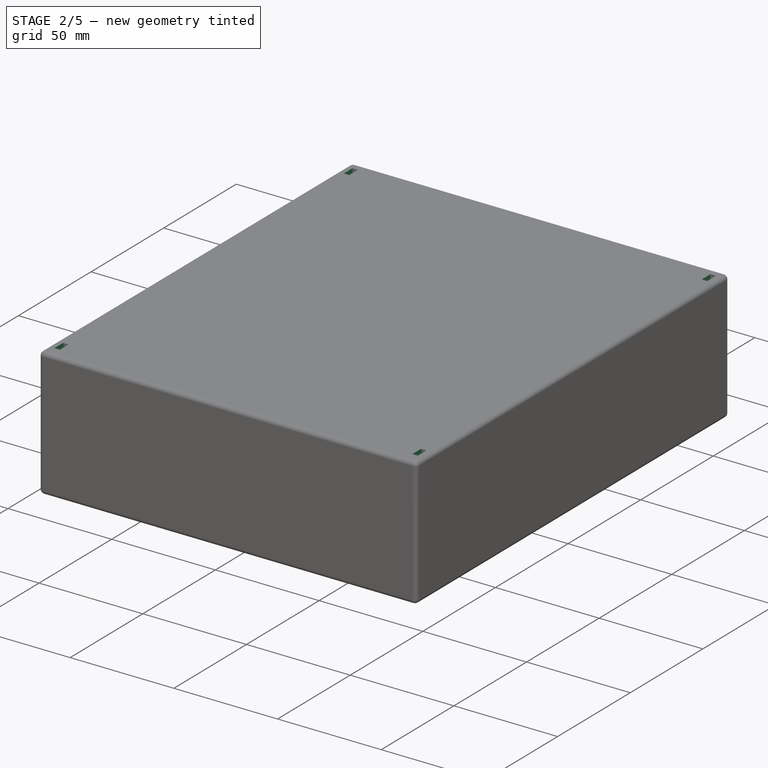
[diagram: stage 2 of 5 — iso view after this stage's code; geometry added in this stage tinted green]
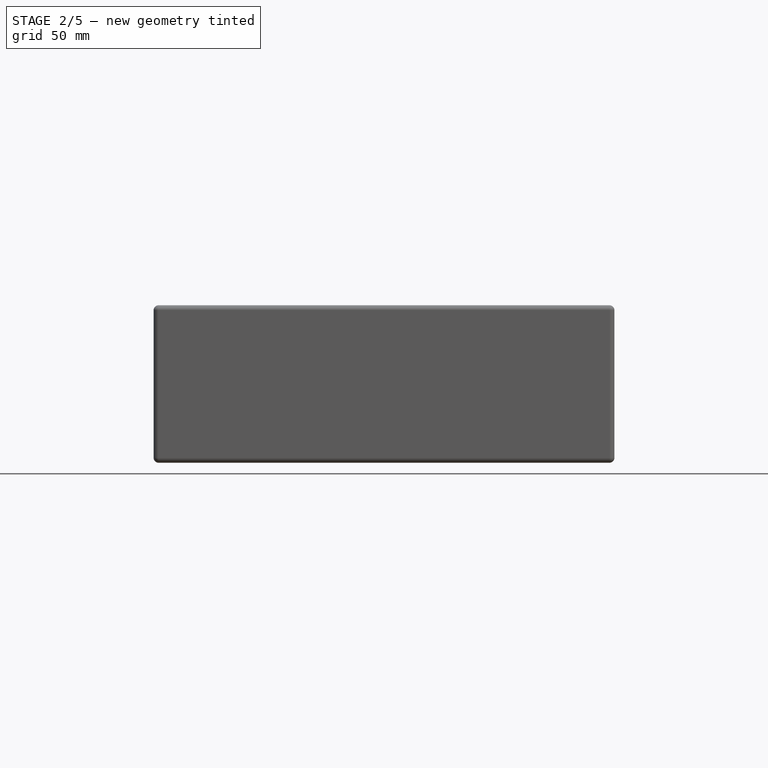
[diagram: stage 2 of 5 — front view after this stage's code; geometry added in this stage tinted green]
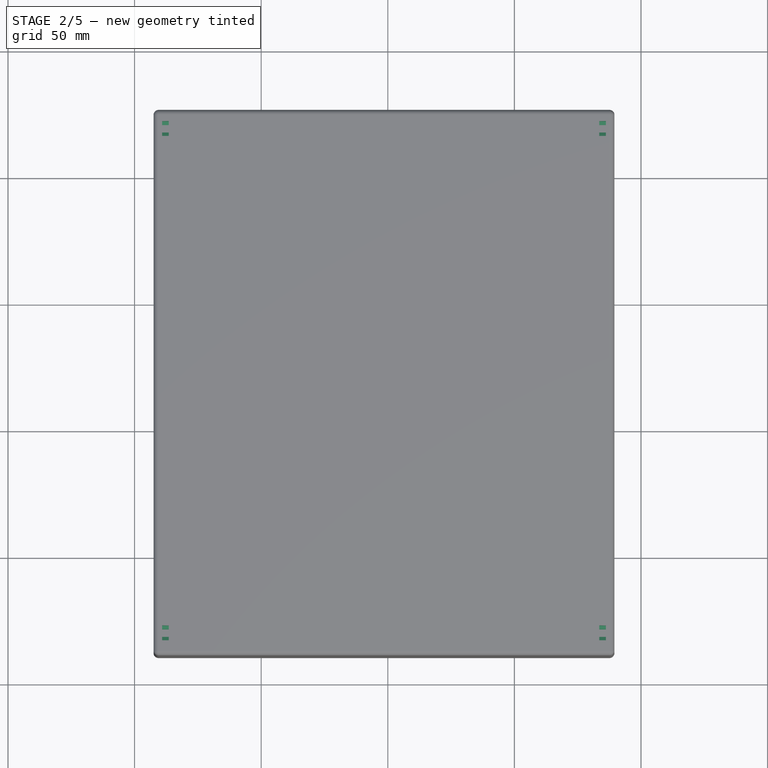
[diagram: stage 2 of 5 — top view after this stage's code; geometry added in this stage tinted green]
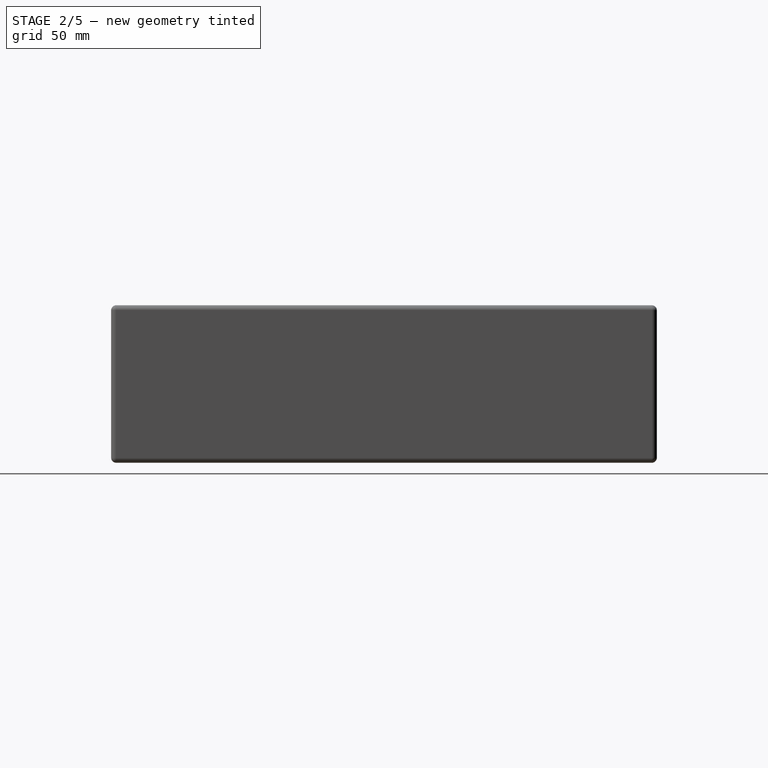
[diagram: stage 2 of 5 — right view after this stage's code; geometry added in this stage tinted green]
FEATURE [PartDesign::Pad] Pad004  label="LidAlign_"
  AllowMultiFace = false
  BaseFeature = -> Fillet003
  Direction = (0,0,1)
  Length = 2.8
  Length2 = 100
  Profile = -> Sketch022
  Reversed = true
  Suppressed = false
  Type = 0
FEATURE [PartDesign::Pad] Pad006  label="LidBackWall_"
  AllowMultiFace = false
  BaseFeature = -> Pad004
  Direction = (0,0,1)
  Length = 11.3
  Length2 = 100
  Profile = -> Sketch024
  Reversed = true
  Suppressed = false
  Type = 0
  expr: Length = <<LidBackWall>>.Placement.Base.z - <<Template_XZ>>.Constraints.BackPlateTop
FEATURE [PartDesign::Fillet] Fillet
  Base = -> Pad006 [Edge10]
  BaseFeature = -> Pad006
  Radius = 3
  SupportTransform = false
  Suppressed = false
  UseAllEdges = false
FEATURE [PartDesign::Pad] Pad007  label="LidNutHolders_"
  AllowMultiFace = false
  BaseFeature = -> Fillet
  Direction = (0,0,1)
  Length = 7.6
  Length2 = 100
  Profile = -> Sketch028
  Refine = true
  Reversed = true
  Suppressed = false
  Type = 0
  expr: Length = <<LidNutHolders>>.Placement.Base.z - DatumPlane.Placement.Base.z
FEATURE [Sketcher::SketchObject] Sketch032  label="LidNutCavityRight"
  ArcFitTolerance = 0
  AttachmentOffset = pos=(0,0,84.8) rot=(0,0,1;0rad)
  AttachmentSupport = -> [YZ_Plane003]
  ExternalGeometry = -> [ShapeBinder001]
  FullyConstrained = true
  MakeInternals = false
  MapMode = 5
  Placement = pos=(84.8,0,0) rot=(0.57735,0.57735,0.57735;2.0944rad)
  expr: .AttachmentOffset.Base.z = Sketch028.Constraints.RightOffset
  expr: Constraints[58] = <<LidBase_>>.Length
  sketch-geometry (22):
    g0: LineSegment StartX=115.711 StartY=54.5 StartZ=0 EndX=115.711 EndY=62.2 EndZ=0
    g1: LineSegment StartX=121.6 StartY=54.5 StartZ=0 EndX=121.6 EndY=62.2 EndZ=0
    g2: LineSegment StartX=115.711 StartY=62.2 StartZ=0 EndX=121.6 EndY=62.2 EndZ=0
    g3: LineSegment StartX=115.711 StartY=54.5 StartZ=0 EndX=117.183 EndY=53.65 EndZ=0
    g4: LineSegment StartX=121.6 StartY=54.5 StartZ=0 EndX=120.128 EndY=53.65 EndZ=0
    g5: LineSegment StartX=117.183 StartY=53.65 StartZ=0 EndX=117.183 EndY=52.4 EndZ=0
    g6: LineSegment StartX=120.128 StartY=53.65 StartZ=0 EndX=120.128 EndY=52.4 EndZ=0
    g7: LineSegment StartX=117.183 StartY=52.4 StartZ=0 EndX=120.128 EndY=52.4 EndZ=0
    g8: LineSegment [constr] StartX=118.656 StartY=52.4 StartZ=0 EndX=118.656 EndY=62.2 EndZ=0
    g9: LineSegment [constr] StartX=115.711 StartY=54.5 StartZ=0 EndX=118.656 EndY=54.5 EndZ=0
    g10: LineSegment [constr] StartX=117.183 StartY=53.65 StartZ=0 EndX=120.128 EndY=53.65 EndZ=0
    g11: LineSegment StartX=-83.5 StartY=54.5 StartZ=0 EndX=-83.5 EndY=62.2 EndZ=0
    g12: LineSegment StartX=-83.5 StartY=62.2 StartZ=0 EndX=-77.611 EndY=62.2 EndZ=0
    g13: LineSegment StartX=-77.611 StartY=62.2 StartZ=0 EndX=-77.611 EndY=54.5 EndZ=0
    g14: LineSegment StartX=-83.5 StartY=54.5 StartZ=0 EndX=-82.0278 EndY=53.65 EndZ=0
    g15: LineSegment StartX=-77.611 StartY=54.5 StartZ=0 EndX=-79.0833 EndY=53.65 EndZ=0
    g16: LineSegment StartX=-82.0278 StartY=53.65 StartZ=0 EndX=-82.0278 EndY=52.4 EndZ=0
    g17: LineSegment StartX=-82.0278 StartY=52.4 StartZ=0 EndX=-79.0833 EndY=52.4 EndZ=0
    g18: LineSegment StartX=-79.0833 StartY=52.4 StartZ=0 EndX=-79.0833 EndY=53.65 EndZ=0
    g19: LineSegment [constr] StartX=-80.5555 StartY=52.4 StartZ=0 EndX=-80.5555 EndY=62.2 EndZ=0
    g20: LineSegment [constr] StartX=-83.5 StartY=54.5 StartZ=0 EndX=-80.5555 EndY=54.5 EndZ=0
    g21: LineSegment [constr] StartX=-82.0278 StartY=53.65 StartZ=0 EndX=-79.0833 EndY=53.65 EndZ=0
  constraints (62):
    c: Coincident(g0,g-13)
    c: Vertical(g0)
    c: Coincident(g1,g-12)
    c: Vertical(g1)
    c: Coincident(g2,g0)
    c: Coincident(g2,g1)
    c: Coincident(g3,g0)
    c: PointOnObject(g3,g-13)
    c: Coincident(g4,g1)
    c: PointOnObject(g4,g-12)
    c: Coincident(g5,g3)
    c: PointOnObject(g5,g-11)
    c: Vertical(g5)
    c: Coincident(g6,g4)
    c: PointOnObject(g6,g-11)
    c: Vertical(g6)
    c: Coincident(g7,g5)
    c: Coincident(g7,g6)
    c: PointOnObject(g8,g7)
    c: PointOnObject(g8,g2)
    c: Vertical(g8)
    c: PointOnObject(g-13,g8)
    c: Coincident(g9,g0)
    c: PointOnObject(g9,g8)
    c: Horizontal(g9)
    c: Coincident(g10,g4)
    c: Equal(g10,g9)
    c: Coincident(g10,g3)
    c: Coincident(g11,g-7)
    c: Vertical(g11)
    c: Coincident(g12,g11)
    c: Coincident(g13,g12)
    c: Coincident(g13,g-8)
    c: Vertical(g13)
    c: Coincident(g14,g11)
    c: PointOnObject(g14,g-7)
    c: Coincident(g15,g13)
    c: PointOnObject(g15,g-8)
    c: Coincident(g16,g14)
    c: PointOnObject(g16,g-6)
    c: Vertical(g16)
    c: Coincident(g17,g16)
    c: PointOnObject(g17,g-6)
    c: Coincident(g18,g17)
    c: Coincident(g18,g15)
    c: Vertical(g18)
    c: PointOnObject(g19,g17)
    c: PointOnObject(g19,g12)
    c: Vertical(g19)
    c: PointOnObject(g-8,g19)
    c: Coincident(g20,g11)
    c: PointOnObject(g20,g19)
    c: Horizontal(g20)
    c: Coincident(g21,g14)
    c: Coincident(g21,g15)
    c: Horizontal(g21)
    c: Equal(g20,g21)
    c: Horizontal(g10)
    c: DistanceY(g-3,g11) = 2.2
    c: Horizontal(g12)
    c: Horizontal(g2)
    c: PointOnObject(g0,g12)
FEATURE [PartDesign::Pocket] Pocket013  label="LidNutCavityRight_"
  AllowMultiFace = false
  BaseFeature = -> Pad007
  Direction = (-1,0,0)
  Length = 2.6
  Length2 = 100
  Midplane = true
  Profile = -> Sketch032
  Suppressed = false
  Type = 0
  expr: Length = <<Screws>>.M3NutHeight
FEATURE [Sketcher::SketchObject] Sketch033  label="LidNutCavitiLeft"
  ArcFitTolerance = 0
  AttachmentOffset = pos=(0,0,-87.8) rot=(0,0,1;0rad)
  AttachmentSupport = -> [YZ_Plane003]
  ExternalGeometry = -> [ShapeBinder001]
  FullyConstrained = true
  MakeInternals = false
  MapMode = 5
  Placement = pos=(-87.8,0,0) rot=(0.57735,0.57735,0.57735;2.0944rad)
  expr: .AttachmentOffset.Base.z = -Sketch028.Constraints.LeftOffset
  expr: Constraints[58] = <<LidBase_>>.Length
  sketch-geometry (22):
    g0: LineSegment StartX=115.711 StartY=54.5 StartZ=0 EndX=115.711 EndY=62.2 EndZ=0
    g1: LineSegment StartX=121.6 StartY=54.5 StartZ=0 EndX=121.6 EndY=62.2 EndZ=0
    g2: LineSegment StartX=115.711 StartY=62.2 StartZ=0 EndX=121.6 EndY=62.2 EndZ=0
    g3: LineSegment StartX=115.711 StartY=54.5 StartZ=0 EndX=117.183 EndY=53.65 EndZ=0
    g4: LineSegment StartX=121.6 StartY=54.5 StartZ=0 EndX=120.128 EndY=53.65 EndZ=0
    g5: LineSegment StartX=117.183 StartY=53.65 StartZ=0 EndX=117.183 EndY=52.4 EndZ=0
    g6: LineSegment StartX=120.128 StartY=53.65 StartZ=0 EndX=120.128 EndY=52.4 EndZ=0
    g7: LineSegment StartX=117.183 StartY=52.4 StartZ=0 EndX=120.128 EndY=52.4 EndZ=0
    g8: LineSegment [constr] StartX=118.656 StartY=52.4 StartZ=0 EndX=118.656 EndY=62.2 EndZ=0
    g9: LineSegment [constr] StartX=115.711 StartY=54.5 StartZ=0 EndX=118.656 EndY=54.5 EndZ=0
    g10: LineSegment [constr] StartX=117.183 StartY=53.65 StartZ=0 EndX=120.128 EndY=53.65 EndZ=0
    g11: LineSegment StartX=-83.5 StartY=54.5 StartZ=0 EndX=-83.5 EndY=62.2 EndZ=0
    g12: LineSegment StartX=-83.5 StartY=62.2 StartZ=0 EndX=-77.611 EndY=62.2 EndZ=0
    g13: LineSegment StartX=-77.611 StartY=62.2 StartZ=0 EndX=-77.611 EndY=54.5 EndZ=0
    g14: LineSegment StartX=-83.5 StartY=54.5 StartZ=0 EndX=-82.0278 EndY=53.65 EndZ=0
    g15: LineSegment StartX=-77.611 StartY=54.5 StartZ=0 EndX=-79.0833 EndY=53.65 EndZ=0
    g16: LineSegment StartX=-82.0278 StartY=53.65 StartZ=0 EndX=-82.0278 EndY=52.4 EndZ=0
    g17: LineSegment StartX=-82.0278 StartY=52.4 StartZ=0 EndX=-79.0833 EndY=52.4 EndZ=0
    g18: LineSegment StartX=-79.0833 StartY=52.4 StartZ=0 EndX=-79.0833 EndY=53.65 EndZ=0
    g19: LineSegment [constr] StartX=-80.5555 StartY=52.4 StartZ=0 EndX=-80.5555 EndY=62.2 EndZ=0
    g20: LineSegment [constr] StartX=-83.5 StartY=54.5 StartZ=0 EndX=-80.5555 EndY=54.5 EndZ=0
    g21: LineSegment [constr] StartX=-82.0278 StartY=53.65 StartZ=0 EndX=-79.0833 EndY=53.65 EndZ=0
  constraints (62):
    c: Coincident(g0,g-13)
    c: Vertical(g0)
    c: Coincident(g1,g-12)
    c: Vertical(g1)
    c: Coincident(g2,g0)
    c: Coincident(g2,g1)
    c: Coincident(g3,g0)
    c: PointOnObject(g3,g-13)
    c: Coincident(g4,g1)
    c: PointOnObject(g4,g-12)
    c: Coincident(g5,g3)
    c: PointOnObject(g5,g-11)
    c: Vertical(g5)
    c: Coincident(g6,g4)
    c: PointOnObject(g6,g-11)
    c: Vertical(g6)
    c: Coincident(g7,g5)
    c: Coincident(g7,g6)
    c: PointOnObject(g8,g7)
    c: PointOnObject(g8,g2)
    c: Vertical(g8)
    c: PointOnObject(g-13,g8)
    c: Coincident(g9,g0)
    c: PointOnObject(g9,g8)
    c: Horizontal(g9)
    c: Coincident(g10,g4)
    c: Equal(g10,g9)
    c: Coincident(g10,g3)
    c: Coincident(g11,g-7)
    c: Vertical(g11)
    c: Coincident(g12,g11)
    c: Coincident(g13,g12)
    c: Coincident(g13,g-8)
    c: Vertical(g13)
    c: Coincident(g14,g11)
    c: PointOnObject(g14,g-7)
    c: Coincident(g15,g13)
    c: PointOnObject(g15,g-8)
    c: Coincident(g16,g14)
    c: PointOnObject(g16,g-6)
    c: Vertical(g16)
    c: Coincident(g17,g16)
    c: PointOnObject(g17,g-6)
    c: Coincident(g18,g17)
    c: Coincident(g18,g15)
    c: Vertical(g18)
    c: PointOnObject(g19,g17)
    c: PointOnObject(g19,g12)
    c: Vertical(g19)
    c: PointOnObject(g-8,g19)
    c: Coincident(g20,g11)
    c: PointOnObject(g20,g19)
    c: Horizontal(g20)
    c: Coincident(g21,g14)
    c: Coincident(g21,g15)
    c: Horizontal(g21)
    c: Equal(g20,g21)
    c: Horizontal(g10)
    c: DistanceY(g-3,g11) = 2.2
    c: Horizontal(g12)
    c: Horizontal(g2)
    c: PointOnObject(g0,g12)
FEATURE [PartDesign::Pocket] Pocket014  label="LidNutCavitiLeft_"
  AllowMultiFace = false
  BaseFeature = -> Pocket013
  Direction = (-1,0,0)
  Length = 2.6
  Length2 = 100
  Midplane = true
  Profile = -> Sketch033
  Suppressed = false
  Type = 0
  expr: Length = <<LidNutCavityRight_>>.Length
FEATURE [PartDesign::Pocket] Pocket011  label="LidNutHoles_"
  AllowMultiFace = false
  BaseFeature = -> Pocket014
  Direction = (-1,0,0)
  Length = 5
  Length2 = 100
  Midplane = true
  Profile = -> Sketch030
  Suppressed = false
  Type = 1
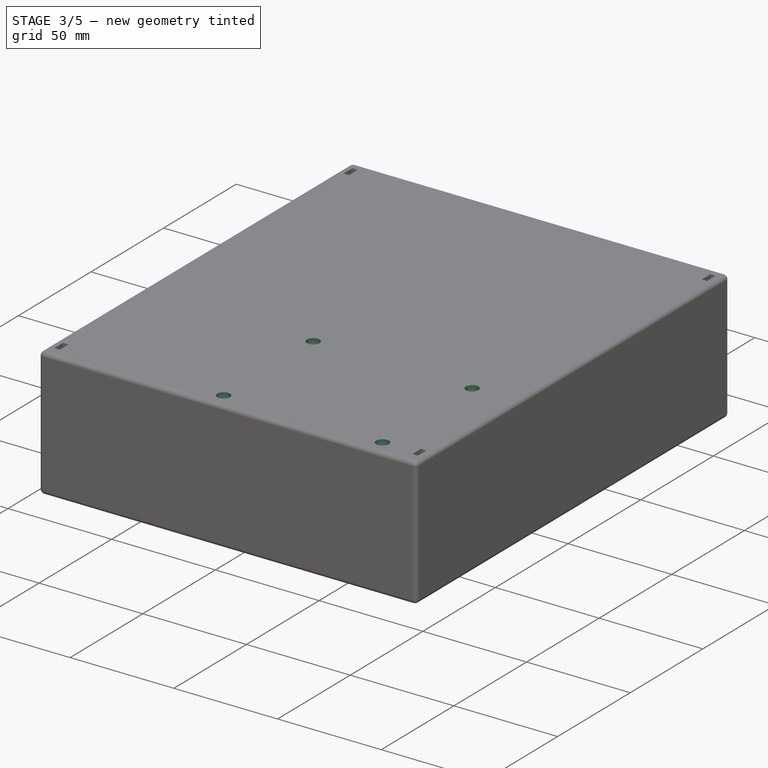
[diagram: stage 3 of 5 — iso view after this stage's code; geometry added in this stage tinted green]
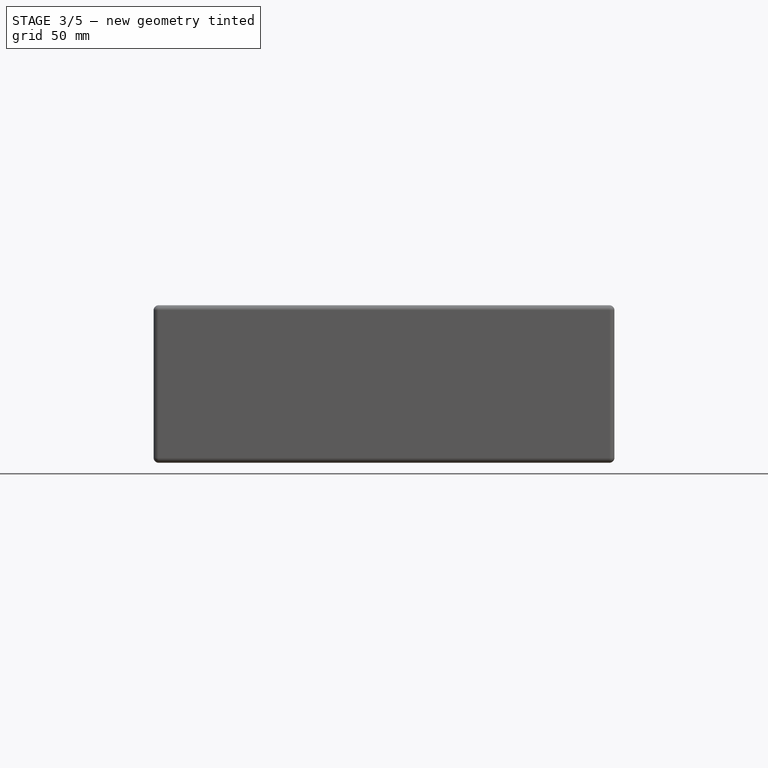
[diagram: stage 3 of 5 — front view after this stage's code; geometry added in this stage tinted green]
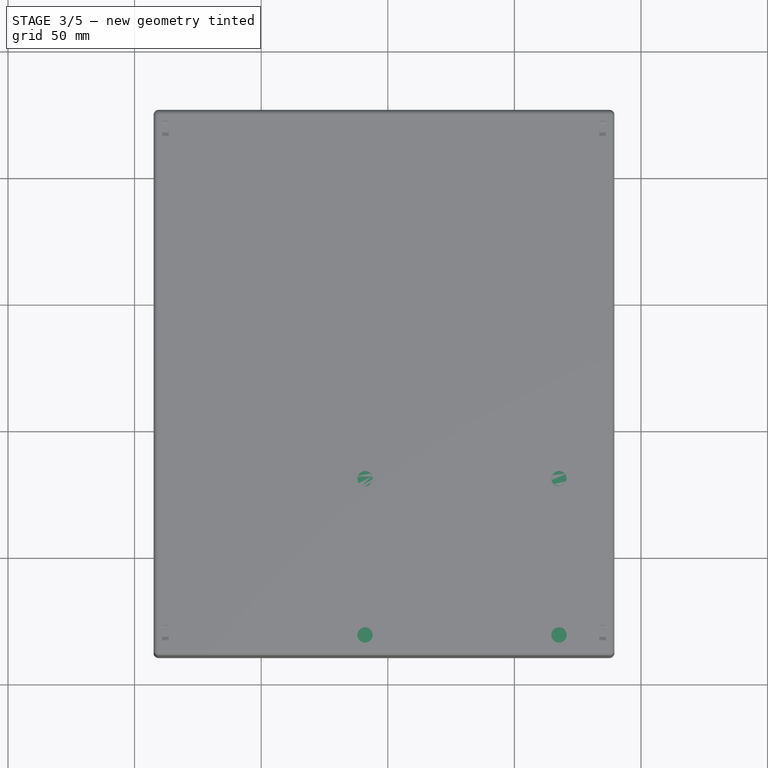
[diagram: stage 3 of 5 — top view after this stage's code; geometry added in this stage tinted green]
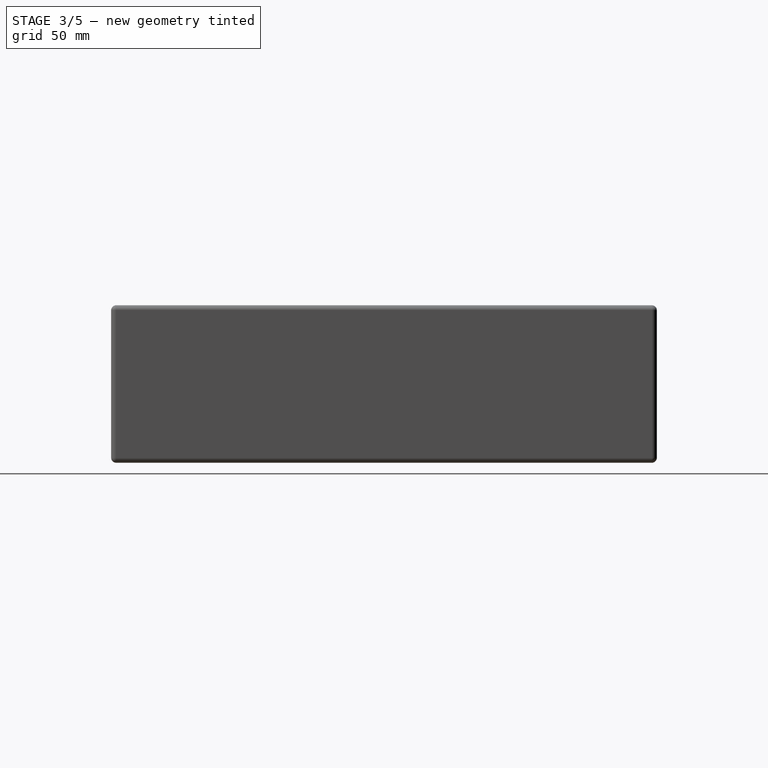
[diagram: stage 3 of 5 — right view after this stage's code; geometry added in this stage tinted green]
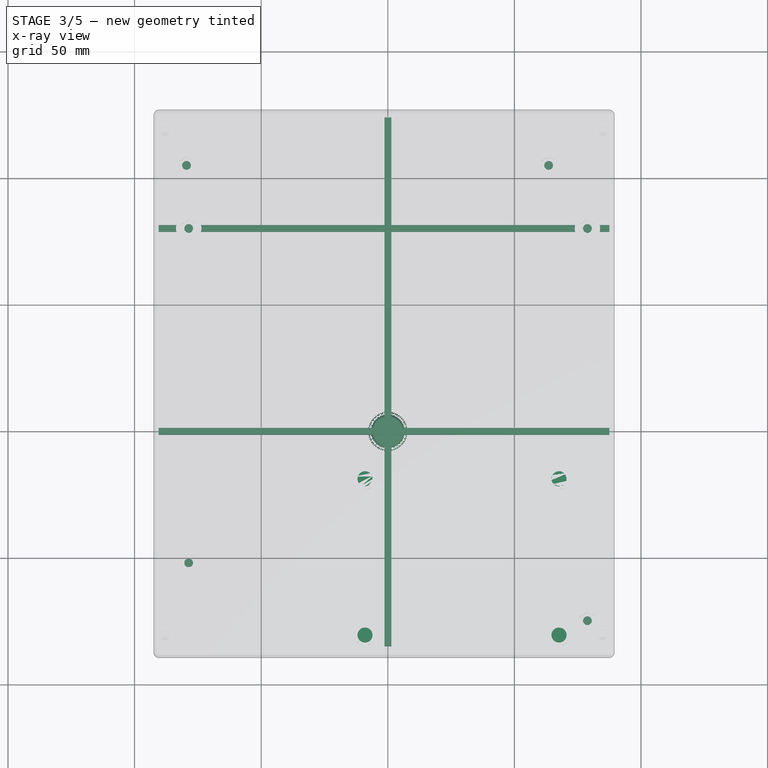
[diagram: stage 3 of 5 — x-ray composite at the top view; earlier geometry ghosted, this stage's added geometry solid]
FEATURE [Sketcher::SketchObject] Sketch022  label="LidAlign"
  ArcFitTolerance = 0
  AttachmentOffset = pos=(0,0,60) rot=(0,0,1;0rad)
  AttachmentSupport = -> [XY_Plane003]
  ExternalGeometry = -> [Sketch025,ShapeBinder002]
  FullyConstrained = true
  MakeInternals = false
  MapMode = 5
  Placement = pos=(0,0,60) rot=(0,0,1;0rad)
  expr: .AttachmentOffset.Base.z = <<LidBase>>.Placement.Base.z
  expr: Constraints[37] = <<Spreadsheet>>.BraceWidth
  sketch-geometry (25):
    g0: LineSegment StartX=-90.3 StartY=121.3 StartZ=0 EndX=-90.3 EndY=-84.8 EndZ=0
    g1: LineSegment StartX=-90.3 StartY=-84.8 StartZ=0 EndX=-87.5 EndY=-84.8 EndZ=0
    g2: LineSegment StartX=-87.5 StartY=-84.8 StartZ=0 EndX=-87.5 EndY=-21.12 EndZ=0
    g3: LineSegment StartX=71.5 StartY=-84.8 StartZ=0 EndX=87.3 EndY=-84.8 EndZ=0
    g4: LineSegment StartX=87.3 StartY=121.3 StartZ=0 EndX=-90.3 EndY=121.3 EndZ=0
    g5: LineSegment StartX=-87.5 StartY=118.5 StartZ=0 EndX=84.5 EndY=118.5 EndZ=0
    g6: LineSegment StartX=84.5 StartY=118.5 StartZ=0 EndX=84.5 EndY=55.64 EndZ=0
    g7: LineSegment StartX=84.5 StartY=55.64 StartZ=0 EndX=-87.5 EndY=55.64 EndZ=0
    g8: LineSegment StartX=-87.5 StartY=55.64 StartZ=0 EndX=-87.5 EndY=118.5 EndZ=0
    g9: LineSegment StartX=-87.5 StartY=-18.32 StartZ=0 EndX=-87.5 EndY=52.84 EndZ=0
    g10: LineSegment StartX=-87.5 StartY=52.84 StartZ=0 EndX=84.5 EndY=52.84 EndZ=0
    g11: LineSegment StartX=84.5 StartY=52.84 StartZ=0 EndX=84.5 EndY=-18.32 EndZ=0
    g12: LineSegment [constr] StartX=84.5 StartY=-18.32 StartZ=0 EndX=84.5 EndY=-21.12 EndZ=0
    g13: LineSegment [constr] StartX=-87.5 StartY=-18.32 StartZ=0 EndX=-87.5 EndY=-21.12 EndZ=0
    g14: LineSegment [constr] StartX=-87.5 StartY=55.64 StartZ=0 EndX=-87.5 EndY=52.84 EndZ=0
    g15: LineSegment [constr] StartX=84.5 StartY=55.64 StartZ=0 EndX=84.5 EndY=52.84 EndZ=0
    g16: LineSegment [constr] StartX=-87.5 StartY=118.5 StartZ=0 EndX=-87.5 EndY=121.3 EndZ=0
    g17: LineSegment StartX=-87.5 StartY=-18.32 StartZ=0 EndX=84.5 EndY=-18.32 EndZ=0
    g18: LineSegment StartX=84.5 StartY=-21.12 StartZ=0 EndX=-87.5 EndY=-21.12 EndZ=0
    g19: LineSegment StartX=84.5 StartY=-21.12 StartZ=0 EndX=84.5 EndY=-82 EndZ=0
    g20: LineSegment StartX=87.3 StartY=-84.8 StartZ=0 EndX=87.3 EndY=-82 EndZ=0
    g21: LineSegment StartX=87.3 StartY=-82 StartZ=0 EndX=87.3 EndY=121.3 EndZ=0
    g22: LineSegment [constr] StartX=87.3 StartY=-82 StartZ=0 EndX=84.5 EndY=-82 EndZ=0
    g23: LineSegment StartX=71.5 StartY=-84.8 StartZ=0 EndX=71.5 EndY=-82 EndZ=0
    g24: LineSegment StartX=71.5 StartY=-82 StartZ=0 EndX=84.5 EndY=-82 EndZ=0
  constraints (65):
    c: Coincident(g0,g1)
    c: Horizontal(g1)
    c: Coincident(g1,g2)
    c: Vertical(g2)
    c: Coincident(g3,g20)
    c: Coincident(g21,g4)
    c: Coincident(g4,g0)
    c: Coincident(g5,g6)
    c: Coincident(g6,g7)
    c: Coincident(g7,g8)
    c: Coincident(g8,g5)
    c: Horizontal(g5)
    c: Horizontal(g7)
    c: Vertical(g6)
    c: Vertical(g8)
    c: Vertical(g9)
    c: Coincident(g9,g10)
    c: Horizontal(g10)
    c: Coincident(g10,g11)
    c: Vertical(g11)
    c: Coincident(g12,g11)
    c: Coincident(g12,g19)
    c: Coincident(g13,g2)
    c: Vertical(g13)
    c: Horizontal(g3)
    c: Coincident(g14,g7)
    c: Coincident(g14,g9)
    c: Coincident(g15,g6)
    c: Coincident(g15,g10)
    c: Vertical(g15)
    c: Coincident(g16,g5)
    c: PointOnObject(g16,g4)
    c: Vertical(g16)
    c: Equal(g16,g14)
    c: Equal(g14,g13)
    c: Equal(g13,g12)
    c: Symmetric(g9,g7,g-4)
    c: DistanceY(g10,g6) = 2.8
    c: PointOnObject(g1,g3)
    c: Horizontal(g17)
    c: Symmetric(g18,g17,g-3)
    c: Coincident(g18,g19)
    c: Coincident(g11,g17)
    c: Coincident(g9,g13)
    c: Coincident(g17,g9)
    c: Coincident(g18,g2)
    c: Coincident(g0,g-8)
    c: Coincident(g21,g-8)
    c: Coincident(g0,g-7)
    c: Vertical(g19)
    c: Coincident(g20,g21)
    c: Vertical(g20)
    c: Vertical(g21)
    c: Coincident(g22,g20)
    c: Coincident(g22,g19)
    c: Horizontal(g22)
    c: Coincident(g23,g3)
    c: Vertical(g23)
    c: Coincident(g24,g23)
    c: Horizontal(g24)
    c: Coincident(g19,g24)
    c: Equal(g12,g22)
    c: Equal(g22,g23)
    c: Equal(g23,g1)
    c: PointOnObject(g-9,g23)
FEATURE [Sketcher::SketchObject] Sketch023  label="SSDBumps"
  ArcFitTolerance = 0
  AttachmentOffset = pos=(0,0,60) rot=(0,0,1;0rad)
  AttachmentSupport = -> [XY_Plane003]
  ExternalGeometry = -> [Sketch025]
  FullyConstrained = true
  MakeInternals = false
  MapMode = 5
  Placement = pos=(0,0,60) rot=(0,0,1;0rad)
  expr: .AttachmentOffset.Base.z = <<LidBase>>.Placement.Base.z
  sketch-geometry (4):
    g0: Circle CenterX=-9 CenterY=-19.72 CenterZ=0 NormalX=0 NormalY=0 NormalZ=1 AngleXU=0 Radius=4.2
    g1: Circle CenterX=67.6 CenterY=-19.72 CenterZ=0 NormalX=0 NormalY=0 NormalZ=1 AngleXU=0 Radius=4.2
    g2: Circle CenterX=67.6 CenterY=-81.43 CenterZ=0 NormalX=0 NormalY=0 NormalZ=1 AngleXU=0 Radius=4.2
    g3: Circle CenterX=-9 CenterY=-81.43 CenterZ=0 NormalX=0 NormalY=0 NormalZ=1 AngleXU=0 Radius=4.2
  constraints (8):
    c: Coincident(g3,g-10)
    c: Equal(g3,g-9)
    c: Equal(g2,g-7)
    c: Equal(g1,g-5)
    c: Equal(g0,g-4)
    c: Coincident(g0,g-4)
    c: Coincident(g1,g-6)
    c: Coincident(g2,g-8)
FEATURE [Sketcher::SketchObject] Sketch026  label="SSDBreathe"
  ArcFitTolerance = 0
  AttachmentOffset = pos=(0,0,60) rot=(0,0,1;0rad)
  AttachmentSupport = -> [XY_Plane003]
  ExternalGeometry = -> [Sketch025]
  FullyConstrained = true
  MakeInternals = false
  MapMode = 5
  Placement = pos=(0,0,60) rot=(0,0,1;0rad)
  expr: .AttachmentOffset.Base.z = <<LidBase>>.Placement.Base.z
  sketch-geometry (18):
    g0: ArcOfCircle CenterX=77.3 CenterY=-26.12 CenterZ=0 NormalX=0 NormalY=0 NormalZ=1 AngleXU=0 Radius=2.2 StartAngle=1e-16 EndAngle=3.14159
    g1: ArcOfCircle CenterX=77.3 CenterY=-75.03 CenterZ=0 NormalX=0 NormalY=0 NormalZ=1 AngleXU=0 Radius=2.2 StartAngle=3.14159 EndAngle=6.28319
    g2: LineSegment StartX=75.1 StartY=-26.12 StartZ=0 EndX=75.1 EndY=-75.03 EndZ=0
    g3: LineSegment StartX=79.5 StartY=-26.12 StartZ=0 EndX=79.5 EndY=-75.03 EndZ=0
    g4: LineSegment [constr] StartX=77.3 StartY=-26.12 StartZ=0 EndX=77.3 EndY=-13.32 EndZ=0
    g5: ArcOfCircle CenterX=77.3 CenterY=-13.32 CenterZ=0 NormalX=0 NormalY=0 NormalZ=1 AngleXU=0 Radius=2.2 StartAngle=3.14159 EndAngle=6.28319
    g6: ArcOfCircle CenterX=77.3 CenterY=47.84 CenterZ=0 NormalX=0 NormalY=0 NormalZ=1 AngleXU=0 Radius=2.2 StartAngle=-9e-16 EndAngle=3.14159
    g7: LineSegment StartX=79.5 StartY=-13.32 StartZ=0 EndX=79.5 EndY=47.84 EndZ=0
    g8: LineSegment StartX=75.1 StartY=-13.32 StartZ=0 EndX=75.1 EndY=47.84 EndZ=0
    g9: LineSegment [constr] StartX=77.3 StartY=47.84 StartZ=0 EndX=77.3 EndY=60.64 EndZ=0
    g10: LineSegment [constr] StartX=77.3 StartY=124 StartZ=0 EndX=77.3 EndY=111.2 EndZ=0
    g11: ArcOfCircle CenterX=77.3 CenterY=111.2 CenterZ=0 NormalX=0 NormalY=0 NormalZ=1 AngleXU=0 Radius=2.2 StartAngle=2.9e-15 EndAngle=3.14159
    g12: ArcOfCircle CenterX=77.3 CenterY=60.64 CenterZ=0 NormalX=0 NormalY=0 NormalZ=1 AngleXU=0 Radius=2.2 StartAngle=3.14159 EndAngle=6.28319
    g13: LineSegment StartX=75.1 StartY=111.2 StartZ=0 EndX=75.1 EndY=60.64 EndZ=0
    g14: LineSegment StartX=79.5 StartY=111.2 StartZ=0 EndX=79.5 EndY=60.64 EndZ=0
    g15: LineSegment [constr] StartX=77.3 StartY=47.84 StartZ=0 EndX=87.5 EndY=47.84 EndZ=0
    g16: LineSegment [constr] StartX=77.3 StartY=47.84 StartZ=0 EndX=-80.3 EndY=47.84 EndZ=0
    g17: LineSegment [constr] StartX=-80.3 StartY=47.84 StartZ=0 EndX=-90.5 EndY=47.84 EndZ=0
  constraints (45):
    c: Tangent(g0,g3) = 1.5708
    c: Tangent(g0,g2) = -1.5708
    c: Tangent(g2,g1) = -1.5708
    c: Tangent(g3,g1) = 1.5708
    c: Vertical(g2)
    c: Symmetric(g0,g1,g-9)
    c: Tangent(g0,g-7)
    c: Radius(g1) = 2.2
    c: DistanceX(g1,g-3) = 8
    c: Coincident(g4,g0)
    c: Vertical(g4)
    c: Tangent(g5,g8) = 1.5708
    c: Tangent(g5,g7) = -1.5708
    c: Tangent(g7,g6) = -1.5708
    c: Tangent(g8,g6) = 1.5708
    c: Vertical(g7)
    c: Equal(g5,g6)
    c: Coincident(g5,g4)
    c: Tangent(g5,g-8)
    c: Coincident(g9,g6)
    c: Equal(g9,g4)
    c: Equal(g5,g0)
    c: Symmetric(g9,g6,g-6)
    c: PointOnObject(g10,g-10)
    c: Vertical(g10)
    c: Equal(g10,g9)
    c: Tangent(g11,g14) = 1.5708
    c: Tangent(g11,g13) = -1.5708
    c: Tangent(g13,g12) = -1.5708
    c: Tangent(g14,g12) = 1.5708
    c: Vertical(g13)
    c: Equal(g11,g12)
    c: Coincident(g11,g10)
    c: Coincident(g9,g12)
    c: Equal(g12,g6)
    c: Coincident(g15,g6)
    c: PointOnObject(g15,g-3)
    c: Horizontal(g15)
    c: Coincident(g16,g6)
    c: Horizontal(g16)
    c: Coincident(g17,g16)
    c: PointOnObject(g17,g-4)
    c: Horizontal(g17)
    c: Equal(g17,g15)
    c: DistanceX(g16,g16) = 157.6  'SSDBreatheLength'
FEATURE [Sketcher::SketchObject] Sketch027  label="SSDScrewHeads"
  ArcFitTolerance = 0
  AttachmentOffset = pos=(0,0,62.2) rot=(0,0,1;0rad)
  AttachmentSupport = -> [XY_Plane003]
  ExternalGeometry = -> [Sketch025]
  FullyConstrained = true
  MakeInternals = false
  MapMode = 5
  Placement = pos=(0,0,62.2) rot=(0,0,1;0rad)
  expr: .AttachmentOffset.Base.z = <<LidBase>>.Placement.Base.z + <<LidBase_>>.Length
  expr: Constraints[7] = <<Screws>>.M3HeadRadius
  sketch-geometry (4):
    g0: Circle CenterX=-9 CenterY=-19.72 CenterZ=0 NormalX=0 NormalY=0 NormalZ=1 AngleXU=0 Radius=3
    g1: Circle CenterX=67.6 CenterY=-19.72 CenterZ=0 NormalX=0 NormalY=0 NormalZ=1 AngleXU=0 Radius=3
    g2: Circle CenterX=67.6 CenterY=-81.43 CenterZ=0 NormalX=0 NormalY=0 NormalZ=1 AngleXU=0 Radius=3
    g3: Circle CenterX=-9 CenterY=-81.43 CenterZ=0 NormalX=0 NormalY=0 NormalZ=1 AngleXU=0 Radius=3
  constraints (8):
    c: Coincident(g0,g-3)
    c: Coincident(g1,g-4)
    c: Coincident(g2,g-5)
    c: Coincident(g3,g-6)
    c: Equal(g0,g1)
    c: Equal(g1,g2)
    c: Equal(g2,g3)
    c: Radius(g0) = 3
FEATURE [Sketcher::SketchObject] Sketch028  label="LidNutHolders"
  ArcFitTolerance = 0
  AttachmentOffset = pos=(0,0,60) rot=(0,0,1;0rad)
  AttachmentSupport = -> [XY_Plane003]
  ExternalGeometry = -> [ShapeBinder001,Sketch025]
  FullyConstrained = true
  MakeInternals = false
  MapMode = 5
  Placement = pos=(0,0,60) rot=(0,0,1;0rad)
  expr: .AttachmentOffset.Base.z = <<LidBase>>.AttachmentOffset.Base.z
  expr: Constraints[13] = <<Screws>>.M3NutHeight + 2.4 mm
  sketch-geometry (18):
    g0: LineSegment StartX=-90.3 StartY=123.6 StartZ=0 EndX=-85.3 EndY=123.6 EndZ=0
    g1: LineSegment StartX=-85.3 StartY=123.6 StartZ=0 EndX=-85.3 EndY=113.711 EndZ=0
    g2: LineSegment StartX=-85.3 StartY=113.711 StartZ=0 EndX=-90.3 EndY=113.711 EndZ=0
    g3: LineSegment StartX=-90.3 StartY=113.711 StartZ=0 EndX=-90.3 EndY=123.6 EndZ=0
    g4: LineSegment StartX=82.3 StartY=123.6 StartZ=0 EndX=87.3 EndY=123.6 EndZ=0
    g5: LineSegment StartX=87.3 StartY=123.6 StartZ=0 EndX=87.3 EndY=113.711 EndZ=0
    g6: LineSegment StartX=87.3 StartY=113.711 StartZ=0 EndX=82.3 EndY=113.711 EndZ=0
    g7: LineSegment StartX=82.3 StartY=113.711 StartZ=0 EndX=82.3 EndY=123.6 EndZ=0
    g8: LineSegment StartX=-90.3 StartY=-75.611 StartZ=0 EndX=-85.3 EndY=-75.611 EndZ=0
    g9: LineSegment StartX=-85.3 StartY=-75.611 StartZ=0 EndX=-85.3 EndY=-85.5 EndZ=0
    g10: LineSegment StartX=-85.3 StartY=-85.5 StartZ=0 EndX=-90.3 EndY=-85.5 EndZ=0
    g11: LineSegment StartX=-90.3 StartY=-85.5 StartZ=0 EndX=-90.3 EndY=-75.611 EndZ=0
    g12: LineSegment StartX=82.3 StartY=-75.611 StartZ=0 EndX=87.3 EndY=-75.611 EndZ=0
    g13: LineSegment StartX=87.3 StartY=-75.611 StartZ=0 EndX=87.3 EndY=-85.5 EndZ=0
    g14: LineSegment StartX=87.3 StartY=-85.5 StartZ=0 EndX=82.3 EndY=-85.5 EndZ=0
    g15: LineSegment StartX=82.3 StartY=-85.5 StartZ=0 EndX=82.3 EndY=-75.611 EndZ=0
    g16: GeomPoint [constr] X=-87.8 Y=123.6 Z=0
    g17: GeomPoint [constr] X=84.8 Y=123.6 Z=0
  constraints (52):
    c: DistanceX(g16,g-4) = 87.8  'LeftOffset'
    c: DistanceX(g-4,g17) = 84.8  'RightOffset'
    c: Coincident(g0,g1)
    c: Coincident(g1,g2)
    c: Horizontal(g2)
    c: Coincident(g2,g3)
    c: Vertical(g3)
    c: Coincident(g0,g3)
    c: Vertical(g1)
    c: PointOnObject(g-4,g0)
    c: Horizontal(g0)
    c: PointOnObject(g-4,g2)
    c: Symmetric(g0,g0,g16)
    c: DistanceX(g0,g0) = 5
    c: Equal(g0,g4)
    c: Equal(g4,g14)
    c: Equal(g14,g10)
    c: PointOnObject(g-3,g10)
    c: PointOnObject(g-3,g14)
    c: PointOnObject(g-3,g12)
    c: PointOnObject(g-3,g8)
    c: Horizontal(g8)
    c: Horizontal(g10)
    c: Coincident(g8,g11)
    c: Coincident(g8,g9)
    c: Coincident(g9,g10)
    c: Coincident(g10,g11)
    c: Vertical(g11)
    c: Vertical(g9)
    c: Coincident(g12,g13)
    c: Coincident(g13,g14)
    c: Coincident(g14,g15)
    c: Coincident(g12,g15)
    c: Horizontal(g12)
    c: Horizontal(g14)
    c: Vertical(g13)
    c: Vertical(g15)
    c: Coincident(g4,g7)
    c: Coincident(g4,g5)
    c: Coincident(g5,g6)
    c: Coincident(g6,g7)
    c: Vertical(g7)
    c: Vertical(g5)
    c: Horizontal(g4)
    c: Horizontal(g6)
    c: Symmetric(g4,g4,g17)
    c: PointOnObject(g-4,g4)
    c: PointOnObject(g-4,g6)
    c: PointOnObject(g5,g-6)
    c: PointOnObject(g12,g-6)
    c: PointOnObject(g2,g-5)
    c: PointOnObject(g8,g-5)
FEATURE [PartDesign::Plane] DatumPlane
  AttachmentSupport = -> [ShapeBinder001]
  Length = 221.609
  MapMode = 1
  Placement = pos=(0,113.711,52.4) rot=(0,0,1;0rad)
  ResizeMode = 0
  Width = 255.109
FEATURE [Sketcher::SketchObject] Sketch030  label="LidNutHoles"
  ArcFitTolerance = 0
  AttachmentSupport = -> [YZ_Plane003]
  ExternalGeometry = -> [ShapeBinder001]
  FullyConstrained = true
  MakeInternals = false
  MapMode = 5
  Placement = pos=(0,0,0) rot=(0.57735,0.57735,0.57735;2.0944rad)
  expr: Constraints[3] = <<Screws>>.M3Radius
  sketch-geometry (2):
    g0: Circle CenterX=118.656 CenterY=56.2 CenterZ=0 NormalX=0 NormalY=0 NormalZ=1 AngleXU=0 Radius=1.75
    g1: Circle CenterX=-80.5555 CenterY=56.2 CenterZ=0 NormalX=0 NormalY=0 NormalZ=1 AngleXU=0 Radius=1.75
  constraints (4):
    c: Coincident(g0,g-4)
    c: Coincident(g1,g-3)
    c: Equal(g0,g1)
    c: Radius(g1) = 1.75
FEATURE [PartDesign::AdditiveCone] Cone
  Angle = 360
  AttacherType = Attacher::AttachEngine3D
  Height = 4
  Radius1 = 8
  Radius2 = 6
  Suppressed = false
FEATURE [PartDesign::Pad] Pad005  label="SSDBumps_"
  AllowMultiFace = false
  BaseFeature = -> Pocket011
  Direction = (0,0,1)
  Length = 3.2
  Length2 = 100
  Profile = -> Sketch023
  Reversed = true
  Suppressed = false
  Type = 0
  expr: Length = <<Screws>>.M3HeadHeight + 2 mm - <<LidBase_>>.Length
FEATURE [PartDesign::Pocket] Pocket009  label="SSDScrewHeads_"
  AllowMultiFace = false
  BaseFeature = -> Pad005
  Direction = (0,0,-1)
  Length = 3.4
  Length2 = 100
  Profile = -> Sketch027
  Suppressed = false
  Type = 0
  expr: Length = <<Screws>>.M3HeadHeight
FEATURE [Sketcher::SketchObject] Sketch034  label="ScrewHoles"
  ArcFitTolerance = 0
  AttachmentOffset = pos=(0,0,4.45) rot=(0,0,1;0rad)
  AttachmentSupport = -> [XY_Plane001]
  ExternalGeometry = -> [Sketch]
  FullyConstrained = true
  MakeInternals = false
  MapMode = 5
  Placement = pos=(0,0,4.45) rot=(0,0,1;0rad)
  expr: .AttachmentOffset.Base.z = <<NutHoles>>.AttachmentOffset.Base.z + <<Spreadsheet>>.HoleHelperThickness
  sketch-geometry (6):
    g0: Circle CenterX=-79.5 CenterY=105 CenterZ=0 NormalX=0 NormalY=0 NormalZ=1 AngleXU=0 Radius=1.75
    g1: Circle CenterX=63.5 CenterY=105 CenterZ=0 NormalX=0 NormalY=0 NormalZ=1 AngleXU=0 Radius=1.75
    g2: Circle CenterX=78.83 CenterY=80.1 CenterZ=0 NormalX=0 NormalY=0 NormalZ=1 AngleXU=0 Radius=1.75
    g3: Circle CenterX=78.83 CenterY=-74.84 CenterZ=0 NormalX=0 NormalY=0 NormalZ=1 AngleXU=0 Radius=1.75
    g4: Circle CenterX=-78.65 CenterY=-51.98 CenterZ=0 NormalX=0 NormalY=0 NormalZ=1 AngleXU=0 Radius=1.75
    g5: Circle CenterX=-78.65 CenterY=80.1 CenterZ=0 NormalX=0 NormalY=0 NormalZ=1 AngleXU=0 Radius=1.75
  constraints (12):
    c: Coincident(g0,g-3)
    c: Coincident(g1,g-4)
    c: Coincident(g2,g-5)
    c: Coincident(g3,g-8)
    c: Coincident(g4,g-7)
    c: Coincident(g5,g-6)
    c: Equal(g0,g1)
    c: Equal(g1,g2)
    c: Equal(g2,g3)
    c: Equal(g3,g4)
    c: Equal(g4,g5)
    c: Equal(g0,g-3)
FEATURE [Sketcher::SketchObject] Sketch035  label="BaseBraces"
  ArcFitTolerance = 0
  AttachmentOffset = pos=(0,0,2) rot=(0,0,1;0rad)
  AttachmentSupport = -> [XY_Plane001]
  ExternalGeometry = -> [Sketch012,Sketch]
  FullyConstrained = true
  MakeInternals = false
  MapMode = 5
  Placement = pos=(0,0,2) rot=(0,0,1;0rad)
  expr: .AttachmentOffset.Base.z = <<Base>>.AttachmentOffset.Base.z + <<Base_>>.Length
  expr: Constraints[4] = <<Spreadsheet>>.BraceWidth
  sketch-geometry (29):
    g0: LineSegment [constr] StartX=-90.5 StartY=0 StartZ=0 EndX=87.5 EndY=0 EndZ=0
    g1: LineSegment StartX=-90.5 StartY=1.4 StartZ=0 EndX=-90.5 EndY=-1.4 EndZ=0
    g2: LineSegment StartX=87.5 StartY=1.4 StartZ=0 EndX=87.5 EndY=-1.4 EndZ=0
    g3: LineSegment StartX=87.5 StartY=78.7 StartZ=0 EndX=87.5 EndY=81.5 EndZ=0
    g4: LineSegment StartX=-90.5 StartY=81.5 StartZ=0 EndX=-90.5 EndY=78.7 EndZ=0
    g5: LineSegment StartX=-1.4 StartY=124 StartZ=0 EndX=1.4 EndY=124 EndZ=0
    g6: LineSegment StartX=1.4 StartY=-85 StartZ=0 EndX=-1.4 EndY=-85 EndZ=0
    g7: LineSegment StartX=-90.5 StartY=78.7 StartZ=0 EndX=-1.4 EndY=78.7 EndZ=0
    g8: LineSegment StartX=-1.4 StartY=81.5 StartZ=0 EndX=-1.4 EndY=124 EndZ=0
    g9: LineSegment StartX=1.4 StartY=124 StartZ=0 EndX=1.4 EndY=81.5 EndZ=0
    g10: LineSegment [constr] StartX=-1.4 StartY=78.7 StartZ=0 EndX=1.4 EndY=78.7 EndZ=0
    g11: LineSegment StartX=1.4 StartY=78.7 StartZ=0 EndX=87.5 EndY=78.7 EndZ=0
    g12: LineSegment StartX=-1.4 StartY=81.5 StartZ=0 EndX=-90.5 EndY=81.5 EndZ=0
    g13: LineSegment [constr] StartX=1.4 StartY=78.7 StartZ=0 EndX=1.4 EndY=81.5 EndZ=0
    g14: LineSegment [constr] StartX=-1.4 StartY=81.5 StartZ=0 EndX=-1.4 EndY=78.7 EndZ=0
    g15: LineSegment StartX=87.5 StartY=81.5 StartZ=0 EndX=1.4 EndY=81.5 EndZ=0
    g16: LineSegment [constr] StartX=1.4 StartY=81.5 StartZ=0 EndX=-1.4 EndY=81.5 EndZ=0
    g17: LineSegment StartX=-90.5 StartY=1.4 StartZ=0 EndX=-1.4 EndY=1.4 EndZ=0
    g18: LineSegment StartX=-90.5 StartY=-1.4 StartZ=0 EndX=-1.4 EndY=-1.4 EndZ=0
    g19: LineSegment [constr] StartX=-1.4 StartY=-1.4 StartZ=0 EndX=1.4 EndY=-1.4 EndZ=0
    g20: LineSegment StartX=1.4 StartY=-1.4 StartZ=0 EndX=87.5 EndY=-1.4 EndZ=0
    g21: LineSegment [constr] StartX=-1.4 StartY=1.4 StartZ=0 EndX=1.4 EndY=1.4 EndZ=0
    g22: LineSegment StartX=1.4 StartY=1.4 StartZ=0 EndX=87.5 EndY=1.4 EndZ=0
    g23: LineSegment StartX=1.4 StartY=-1.4 StartZ=0 EndX=1.4 EndY=-85 EndZ=0
    g24: LineSegment StartX=1.4 StartY=78.7 StartZ=0 EndX=1.4 EndY=1.4 EndZ=0
    g25: LineSegment [constr] StartX=1.4 StartY=1.4 StartZ=0 EndX=1.4 EndY=-1.4 EndZ=0
    g26: LineSegment StartX=-1.4 StartY=-85 StartZ=0 EndX=-1.4 EndY=-1.4 EndZ=0
    g27: LineSegment [constr] StartX=-1.4 StartY=-1.4 StartZ=0 EndX=-1.4 EndY=1.4 EndZ=0
    g28: LineSegment StartX=-1.4 StartY=1.4 StartZ=0 EndX=-1.4 EndY=78.7 EndZ=0
  constraints (76):
    c: PointOnObject(g0,g-5)
    c: Symmetric(g-4,g-3,g0)
    c: PointOnObject(g17,g-5)
    c: Symmetric(g18,g17,g0)
    c: DistanceY(g18,g17) = 2.8
    c: Coincident(g1,g17)
    c: Coincident(g1,g18)
    c: Coincident(g2,g22)
    c: Coincident(g2,g20)
    c: Coincident(g11,g3)
    c: Coincident(g3,g15)
    c: Coincident(g12,g4)
    c: Coincident(g4,g7)
    c: Equal(g4,g1)
    c: Coincident(g5,g9)
    c: Coincident(g23,g6)
    c: Coincident(g6,g26)
    c: Coincident(g8,g5)
    c: Horizontal(g5)
    c: PointOnObject(g5,g-7)
    c: PointOnObject(g23,g-6)
    c: Symmetric(g6,g23,g-2)
    c: Equal(g5,g4)
    c: Horizontal(g7)
    c: Vertical(g8)
    c: Vertical(g9)
    c: Horizontal(g10)
    c: Horizontal(g11)
    c: Horizontal(g12)
    c: Vertical(g13)
    c: Vertical(g14)
    c: Horizontal(g15)
    c: Horizontal(g16)
    c: Coincident(g17,g21)
    c: Horizontal(g17)
    c: Coincident(g18,g19)
    c: Horizontal(g18)
    c: Coincident(g19,g20)
    c: Horizontal(g19)
    c: Horizontal(g20)
    c: Coincident(g21,g22)
    c: Horizontal(g21)
    c: Horizontal(g22)
    c: Coincident(g25,g23)
    c: Vertical(g23)
    c: Coincident(g24,g25)
    c: Vertical(g24)
    c: Vertical(g25)
    c: Coincident(g26,g27)
    c: Vertical(g26)
    c: Coincident(g27,g28)
    c: Vertical(g27)
    c: Vertical(g28)
    c: Coincident(g17,g27)
    c: Coincident(g21,g24)
    c: Coincident(g19,g23)
    c: Coincident(g18,g26)
    c: PointOnObject(g2,g-8)
    c: PointOnObject(g2,g-8)
    c: PointOnObject(g0,g2)
    c: PointOnObject(g3,g-8)
    c: PointOnObject(g3,g-8)
    c: PointOnObject(g4,g-5)
    c: Symmetric(g4,g4,g-9)
    c: Coincident(g8,g12)
    c: Coincident(g8,g16)
    c: Coincident(g8,g14)
    c: Coincident(g7,g10)
    c: Coincident(g7,g14)
    c: Coincident(g7,g28)
    c: Coincident(g10,g11)
    c: Coincident(g10,g13)
    c: Coincident(g10,g24)
    c: Coincident(g9,g13)
    c: Coincident(g9,g15)
    c: Coincident(g9,g16)
FEATURE [Sketcher::SketchObject] Sketch036  label="SSDScrewHoles"
  ArcFitTolerance = 0
  AttachmentOffset = pos=(0,0,58.65) rot=(0,0,1;0rad)
  AttachmentSupport = -> [XY_Plane003]
  ExternalGeometry = -> [Sketch025]
  FullyConstrained = true
  MakeInternals = false
  MapMode = 5
  Placement = pos=(0,0,58.65) rot=(0,0,1;0rad)
  expr: .AttachmentOffset.Base.z = <<SSDScrewHeads>>.AttachmentOffset.Base.z - <<SSDScrewHeads_>>.Length - <<Spreadsheet>>.HoleHelperThickness
  sketch-geometry (4):
    g0: Circle CenterX=-9 CenterY=-19.72 CenterZ=0 NormalX=0 NormalY=0 NormalZ=1 AngleXU=0 Radius=1.75
    g1: Circle CenterX=67.6 CenterY=-19.72 CenterZ=0 NormalX=0 NormalY=0 NormalZ=1 AngleXU=0 Radius=1.75
    g2: Circle CenterX=67.6 CenterY=-81.43 CenterZ=0 NormalX=0 NormalY=0 NormalZ=1 AngleXU=0 Radius=1.75
    g3: Circle CenterX=-9 CenterY=-81.43 CenterZ=0 NormalX=0 NormalY=0 NormalZ=1 AngleXU=0 Radius=1.75
  constraints (8):
    c: Coincident(g0,g-3)
    c: Coincident(g1,g-4)
    c: Coincident(g2,g-5)
    c: Coincident(g3,g-6)
    c: Equal(g-6,g3)
    c: Equal(g-3,g0)
    c: Equal(g-4,g1)
    c: Equal(g-5,g2)
FEATURE [PartDesign::Pocket] Pocket016  label="SSDScrewHoles_"
  BaseFeature = -> Pocket009
  Direction = (0,0,-1)
  Length = 5
  Length2 = 5
  Profile = -> Sketch036
  ReferenceAxis = -> Sketch036 [N_Axis]
  Suppressed = false
  Type = 1
FEATURE [PartDesign::Pad] Pad009  label="BaseBraces_"
  BaseFeature = -> Chamfer
  Direction = (0,0,1)
  Length = 2.8
  Length2 = 10
  Profile = -> Sketch035
  ReferenceAxis = -> Sketch035 [N_Axis]
  Suppressed = false
  Type = 0
  expr: Length = <<PcbHolders_>>.Length - <<Chamfer>>.Size
FEATURE [PartDesign::Pocket] Pocket  label="NutHoles_"
  AllowMultiFace = false
  BaseFeature = -> Pad009
  Direction = (0,0,-1)
  Length = 5
  Length2 = 100
  Profile = -> Sketch011
  Suppressed = false
  Type = 1
FEATURE [PartDesign::Pocket] Pocket015  label="ScrewHoles_"
  BaseFeature = -> Pocket
  Direction = (0,0,-1)
  Length = 5
  Length2 = 5
  Profile = -> Sketch034
  ReferenceAxis = -> Sketch034 [N_Axis]
  Reversed = true
  Suppressed = false
  Type = 1
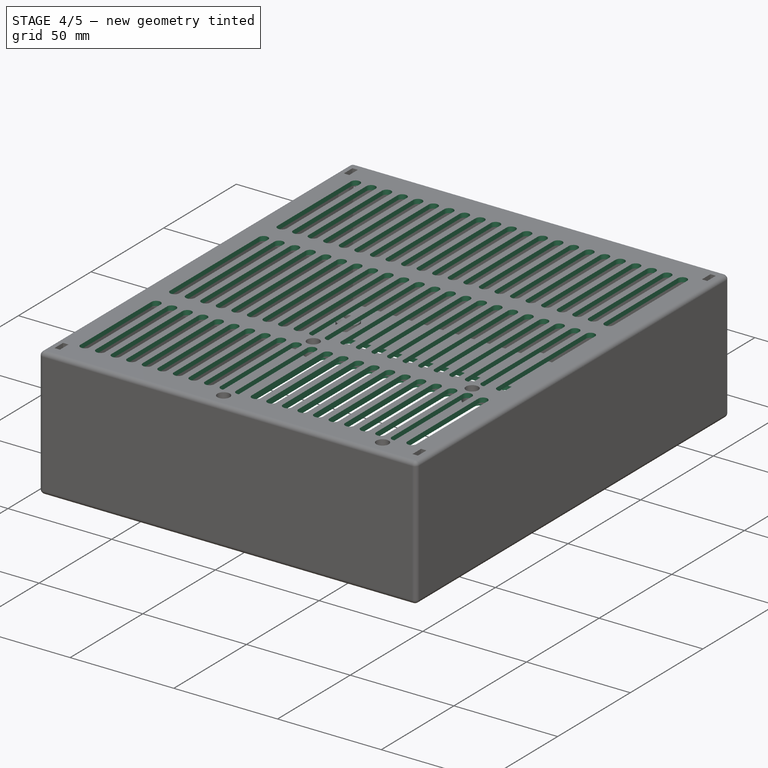
[diagram: stage 4 of 5 — iso view after this stage's code; geometry added in this stage tinted green]
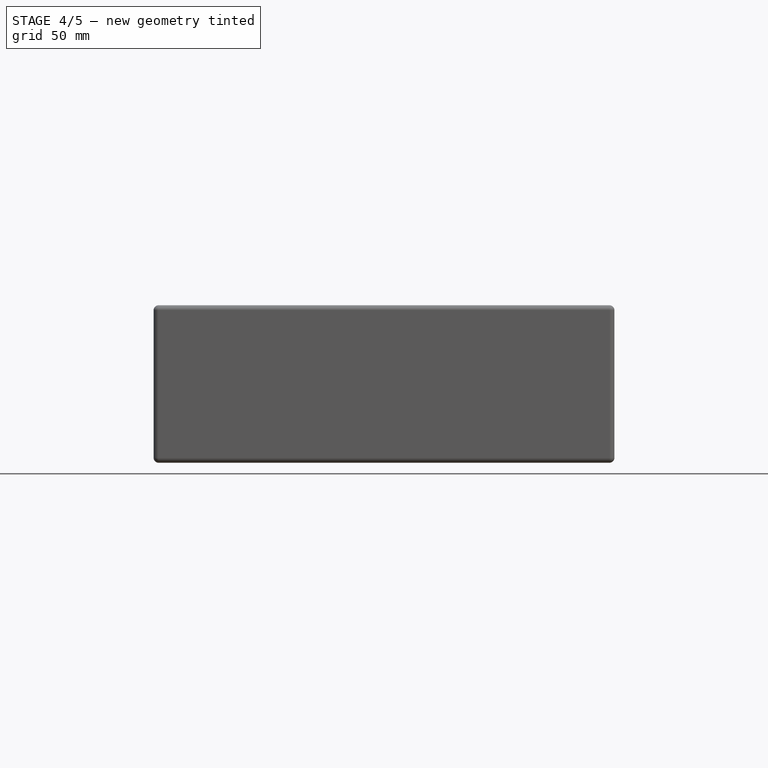
[diagram: stage 4 of 5 — front view after this stage's code; geometry added in this stage tinted green]
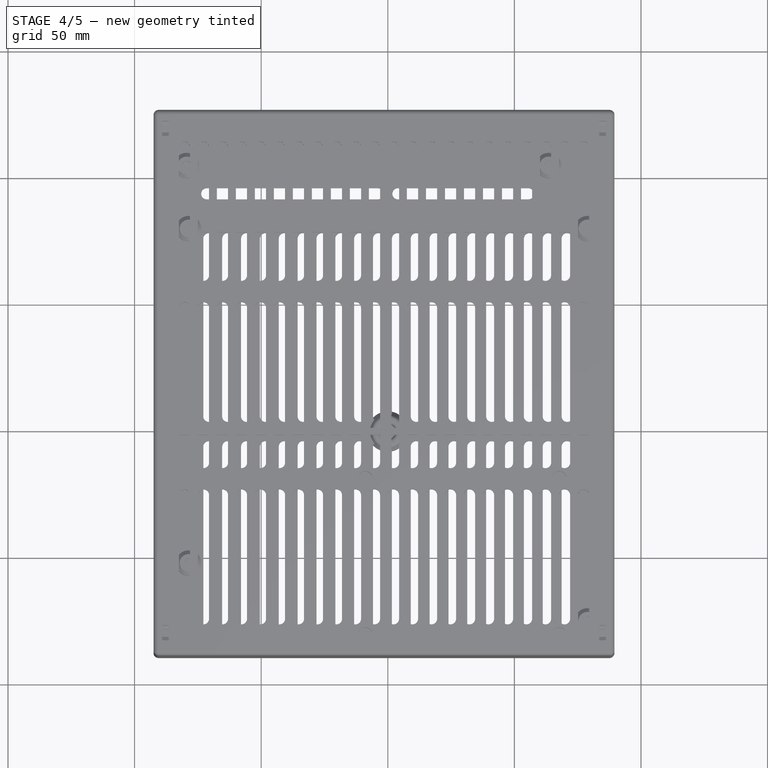
[diagram: stage 4 of 5 — top view after this stage's code; geometry added in this stage tinted green]
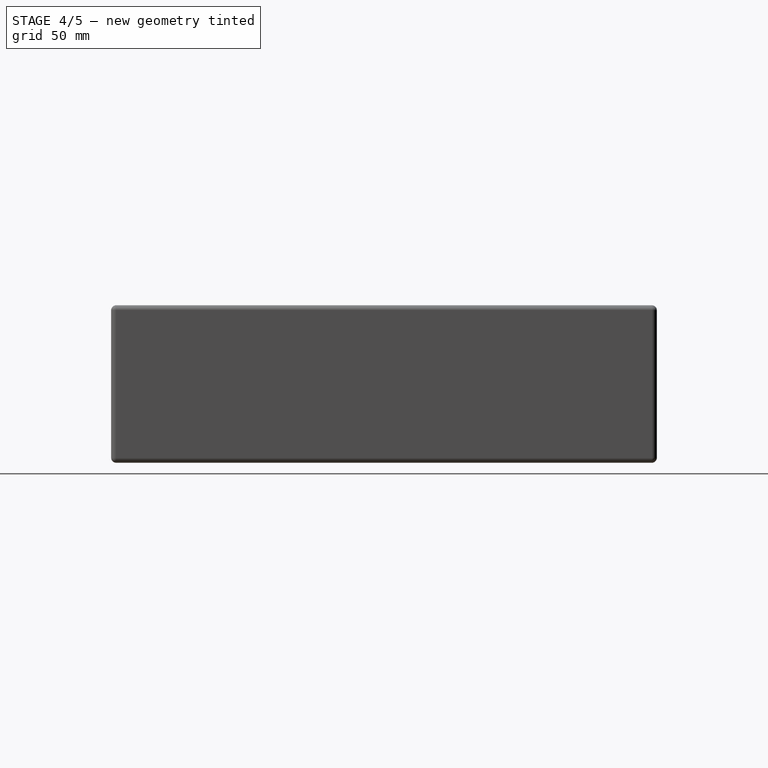
[diagram: stage 4 of 5 — right view after this stage's code; geometry added in this stage tinted green]
FEATURE [Sketcher::SketchObject] Sketch031
  ArcFitTolerance = 0
  AttachmentSupport = -> [Cone]
  FullyConstrained = true
  MakeInternals = false
  MapMode = 5
  Placement = pos=(0,0,4) rot=(0,0,1;0rad)
  sketch-geometry (1):
    g0: Circle CenterX=0 CenterY=0 CenterZ=0 NormalX=0 NormalY=0 NormalZ=1 AngleXU=0 Radius=3
  constraints (2):
    c: Coincident(g0,g-1)
    c: Radius(g0) = 3
FEATURE [PartDesign::Pocket] Pocket012
  AllowMultiFace = false
  BaseFeature = -> Cone
  Direction = (0,0,-1)
  Length = 3
  Length2 = 100
  Profile = -> Sketch031
  Suppressed = false
  Type = 0
FEATURE [PartDesign::Fillet] Fillet001
  Base = -> Pocket012 [Edge1,Edge4]
  BaseFeature = -> Pocket012
  Radius = 1.5
  SupportTransform = false
  Suppressed = false
  UseAllEdges = false
FEATURE [PartDesign::Pocket] Pocket008  label="SSDBreathe_"
  AllowMultiFace = false
  BaseFeature = -> Pocket016
  Direction = (0,0,-1)
  Length = 5
  Length2 = 100
  Profile = -> Sketch026
  Reversed = true
  Suppressed = false
  Type = 1
FEATURE [PartDesign::LinearPattern] LinearPattern003
  BaseFeature = -> Pocket008
  Direction = -> Sketch026 [H_Axis]
  Length = 157.6
  Mode = 0
  Occurrences = 22
  Offset = 7.50476
  Originals = -> [Pocket008]
  Reversed = true
  Suppressed = false
  TransformMode = 0
  expr: Length = Sketch026.Constraints.SSDBreatheLength
FEATURE [PartDesign::Pocket] Pocket001  label="MoBoBreathe_"
  AllowMultiFace = false
  BaseFeature = -> Pocket015
  Direction = (0,0,-1)
  Length = 5
  Length2 = 100
  Profile = -> Sketch012
  Reversed = true
  Suppressed = false
  Type = 1
FEATURE [PartDesign::LinearPattern] LinearPattern
  BaseFeature = -> Pocket001
  Direction = -> Sketch012 [H_Axis]
  Length = 141.48
  Mode = 0
  Occurrences = 20
  Offset = 7.44632
  Originals = -> [Pocket001]
  Suppressed = false
  TransformMode = 0
  expr: Length = <<MoBoBreathe>>.Constraints.BreathingAreaWidth
FEATURE [PartDesign::Pocket] Pocket002  label="PSUBreathe_"
  AllowMultiFace = false
  BaseFeature = -> LinearPattern
  Direction = (0,0,-1)
  Length = 5
  Length2 = 100
  Profile = -> Sketch013
  Reversed = true
  Suppressed = false
  Type = 1
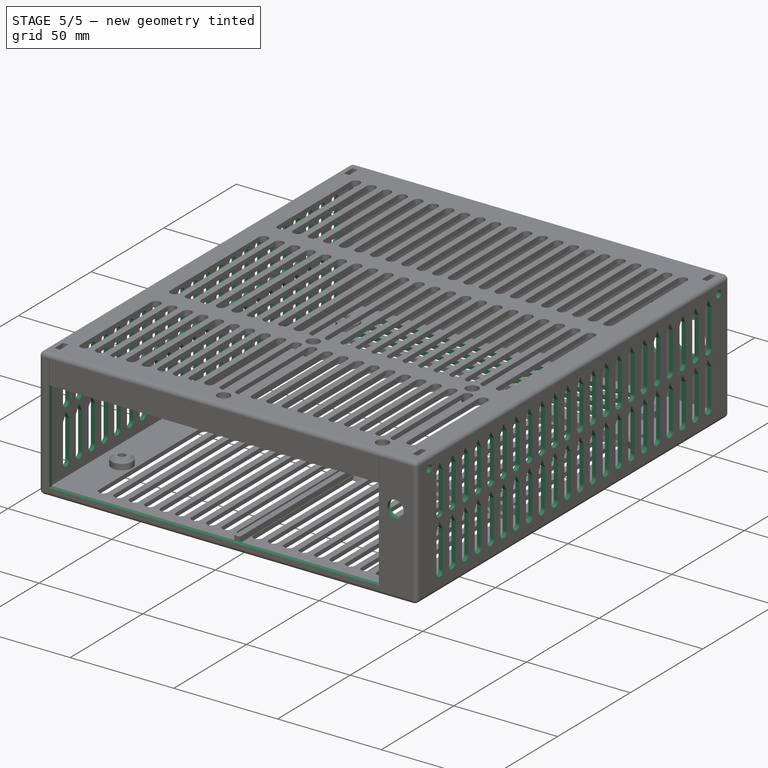
[diagram: stage 5 of 5 — iso view after this stage's code; geometry added in this stage tinted green]
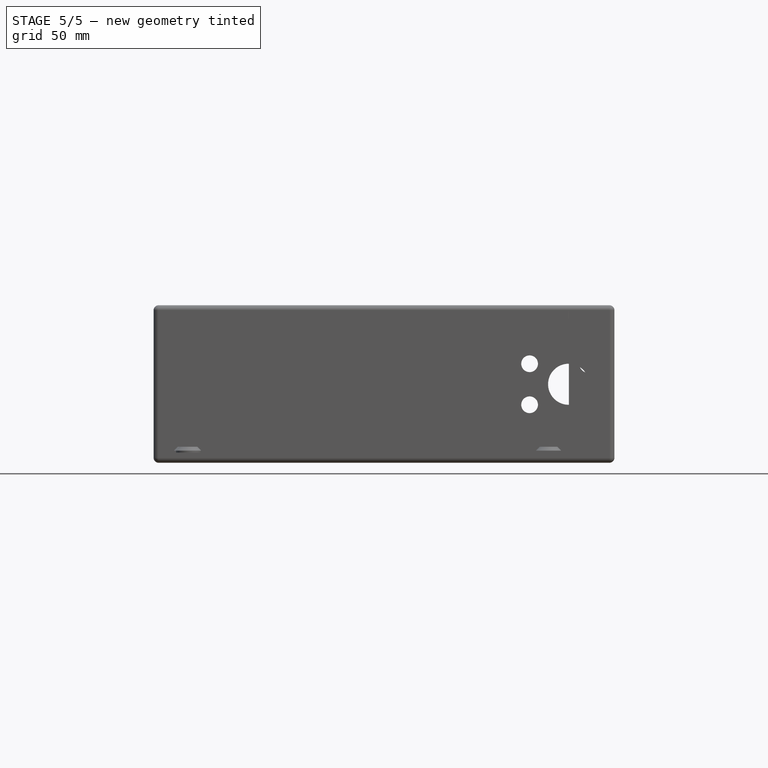
[diagram: stage 5 of 5 — front view after this stage's code; geometry added in this stage tinted green]
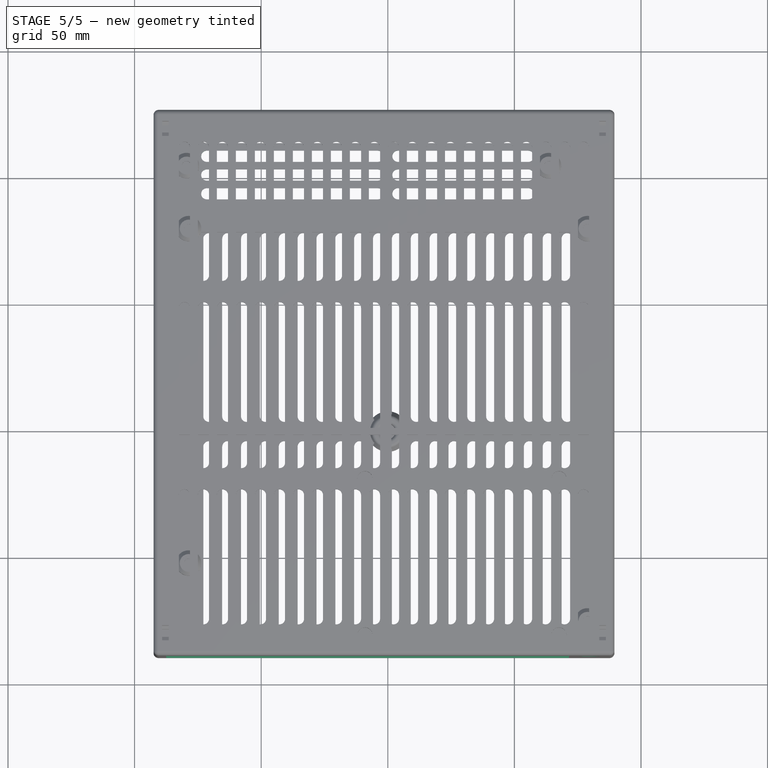
[diagram: stage 5 of 5 — top view after this stage's code; geometry added in this stage tinted green]
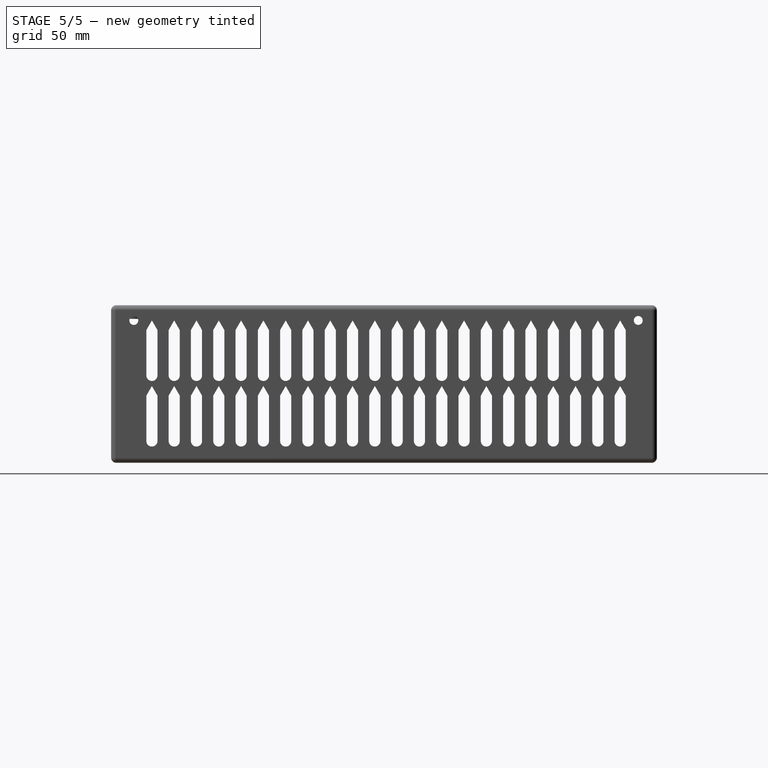
[diagram: stage 5 of 5 — right view after this stage's code; geometry added in this stage tinted green]
FEATURE [PartDesign::LinearPattern] LinearPattern001
  BaseFeature = -> Pocket002
  Direction = -> Y_Axis001
  Length = 22.2
  Mode = 0
  Occurrences = 4
  Offset = 7.4
  Originals = -> [Pocket002]
  Suppressed = false
  TransformMode = 0
  expr: Length = Sketch013.Constraints.BreathingAreaLength
FEATURE [PartDesign::Pocket] Pocket005  label="LidScrewHoles_"
  AllowMultiFace = false
  BaseFeature = -> LinearPattern001
  Direction = (-1,0,0)
  Length = 5
  Length2 = 100
  Midplane = true
  Profile = -> Sketch018
  Suppressed = false
  Type = 1
FEATURE [PartDesign::Pocket] Pocket006  label="PowerButton_"
  AllowMultiFace = false
  BaseFeature = -> Pocket005
  Direction = (0,1,-2e-16)
  Length = 5
  Length2 = 100
  Profile = -> Sketch019
  Suppressed = false
  Type = 1
FEATURE [PartDesign::Pocket] Pocket007  label="12V_In_"
  AllowMultiFace = false
  BaseFeature = -> Pocket006
  Direction = (0,1,-2e-16)
  Length = 5
  Length2 = 100
  Profile = -> Sketch020
  Reversed = true
  Suppressed = false
  Type = 1
FEATURE [PartDesign::Pocket] Pocket003  label="BackPlate_"
  AllowMultiFace = false
  BaseFeature = -> Pocket007
  Direction = (0,1,-2e-16)
  Length = 5
  Length2 = 100
  Profile = -> Sketch008
  Suppressed = false
  Type = 2
FEATURE [PartDesign::Pocket] Pocket004  label="SideBreathe_"
  AllowMultiFace = false
  BaseFeature = -> Pocket003
  Direction = (-1,0,0)
  Length = 5
  Length2 = 100
  Midplane = true
  Profile = -> Sketch017
  Suppressed = false
  Type = 1
FEATURE [PartDesign::LinearPattern] LinearPattern002
  BaseFeature = -> Pocket004
  Direction = -> Sketch017 [H_Axis]
  Length = 184.922
  Mode = 0
  Occurrences = 22
  Offset = 8.80581
  Originals = -> [Pocket004]
  Suppressed = false
  TransformMode = 0
  expr: Length = Sketch017.Constraints.BreatheLen
FEATURE [PartDesign::Body] Body  label="Case"
  AllowCompound = false
  Group = -> [Sketch,Sketch015,Sketch016,Sketch009,Pad,Sketch014,Pad002,Fillet002,Sketch010,Pad001,Chamfer,Sketch035,Pad009,Sketch011,Pocket,Sketch012,Sketch034,Pocket015,Pocket001,LinearPattern,Sketch013,Pocket002,LinearPattern001,Sketch018,Pocket005,Sketch019,Pocket006,Sketch020,Pocket007,Sketch008,Pocket003,Sketch017,Pocket004,LinearPattern002]
  Origin = -> Origin001
  Tip = -> LinearPattern002
FEATURE [Spreadsheet::Sheet] Spreadsheet
  cells = B2='InnerHeight; C2(InnerHeight)==58 mm; B3='WallThickness; C3(WallThickness)==2 mm; B4='BraceWidth; C4(BraceWidth)==2.8 mm; B5='HoleHelperThickness; C5(HoleHelperThickness)==0.15 mm
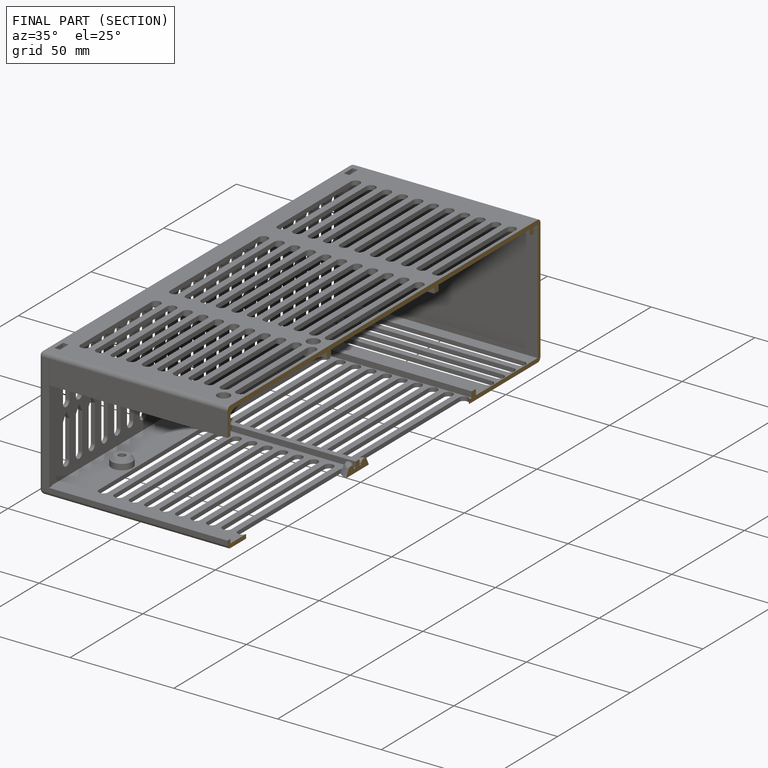
[diagram: finished part — half-section view (interior)]
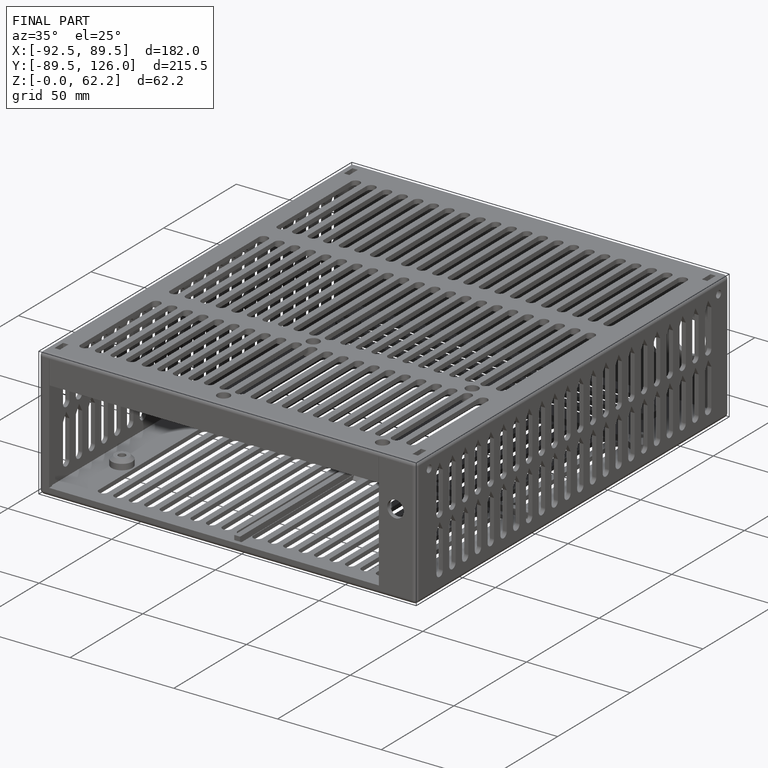
[diagram: finished part — iso view with bounding-box wireframe]
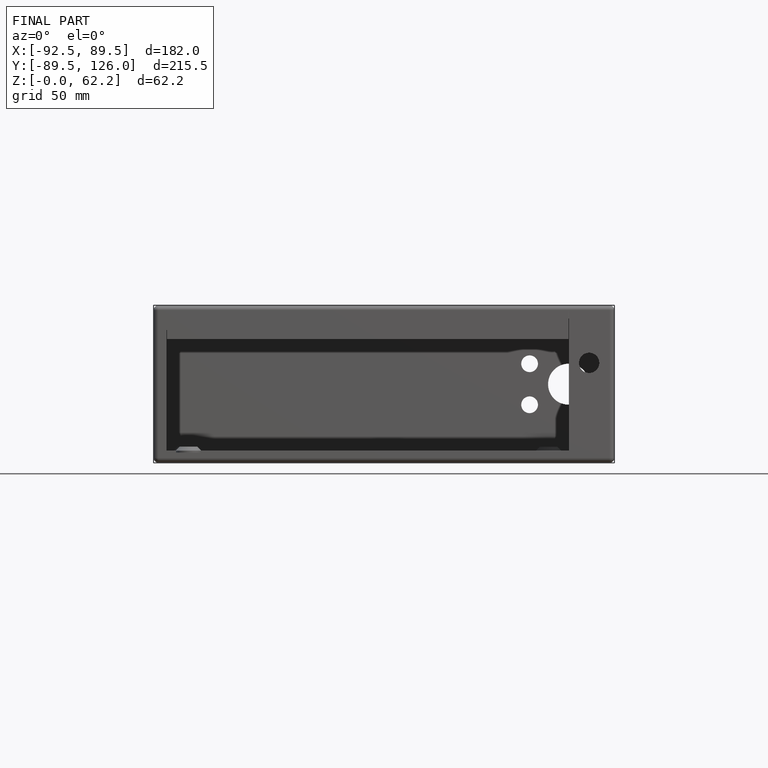
[diagram: finished part — front view with bounding-box wireframe]
